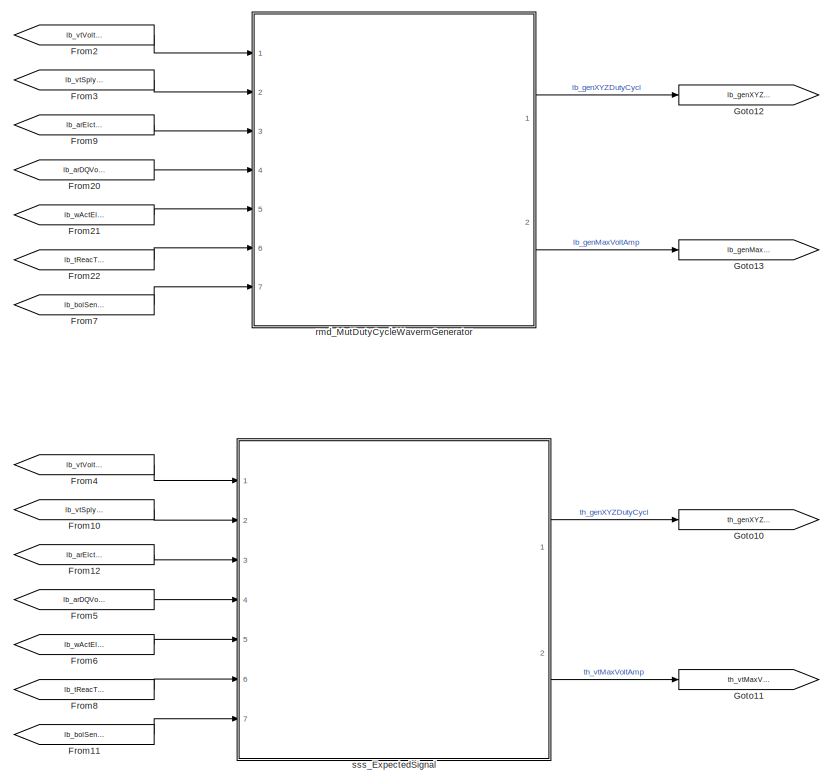
[diagram: root canvas - part 1/3, center side, full height]
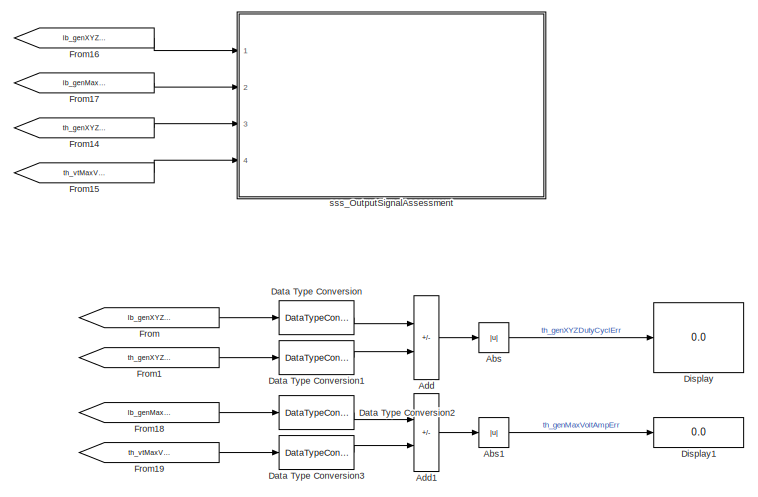
[diagram: root canvas - part 2/3, middle right region]
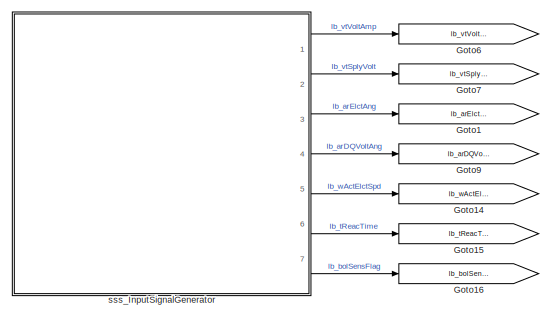
[diagram: root canvas - part 3/3, top left region]
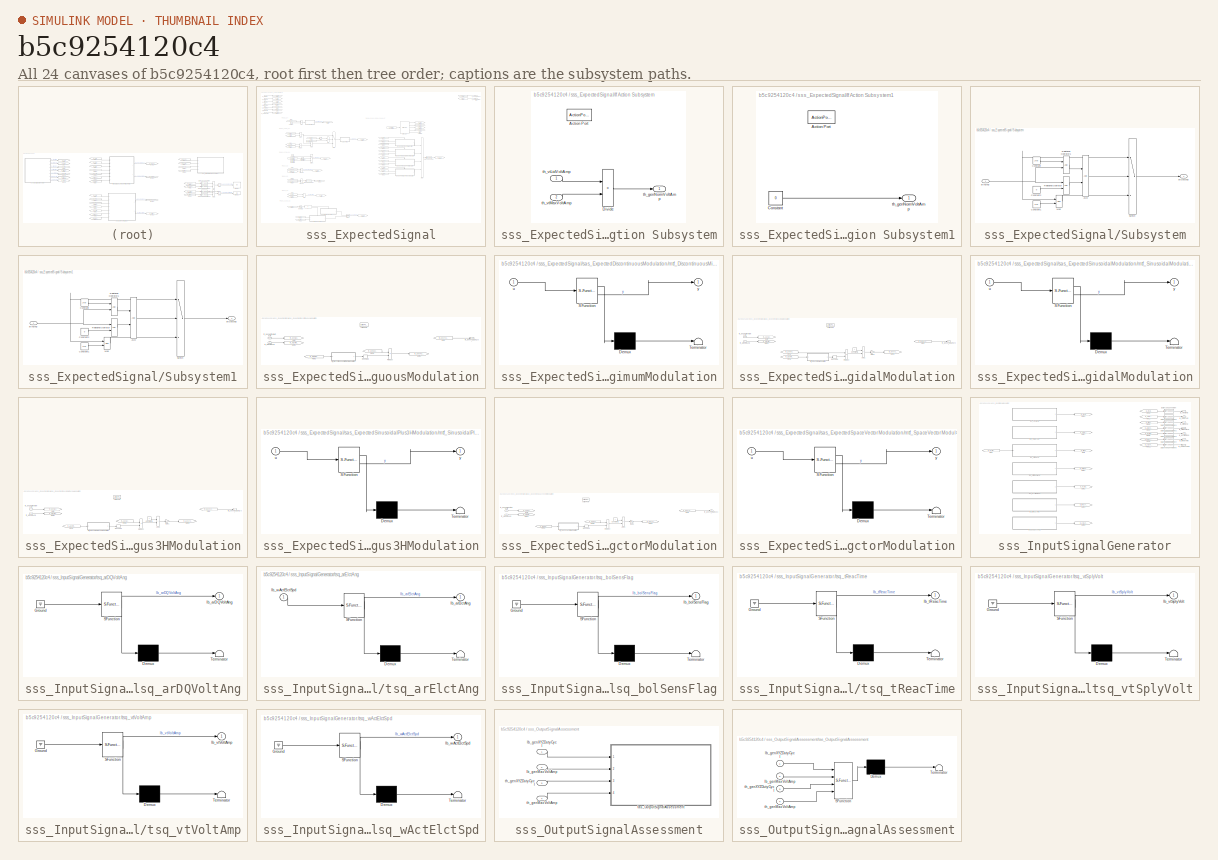
[diagram: thumbnail index - all 24 canvases of the model, root first then tree order]
MODEL slx_b5c9254120c4
KIND model
CONFIG AbsTol = auto
CONFIG EnableMultiTasking = off
CONFIG FixedStep = 6.25e-6
CONFIG MaxStep = auto
CONFIG MinStep = auto
CONFIG RelTol = 1e-3
CONFIG SampleTimeConstraint = Unconstrained
CONFIG SolverName = FixedStepAuto
CONFIG StartTime = 0.0
CONFIG StopTime = 10.0
BLOCK [Abs] Abs
  SaturateOnIntegerOverflow = off
BLOCK [Abs] Abs1
  SaturateOnIntegerOverflow = off
BLOCK [Sum] Add
  IconShape = rectangular
  Inputs = +-
  OutDataTypeStr = double
  Ports = [2, 1]
BLOCK [Sum] Add1
  IconShape = rectangular
  Inputs = +-
  OutDataTypeStr = double
  Ports = [2, 1]
BLOCK [DataTypeConversion] Data Type Conversion
  OutDataTypeStr = double
  RndMeth = Floor
  SaturateOnIntegerOverflow = off
BLOCK [DataTypeConversion] Data Type Conversion1
  OutDataTypeStr = double
  RndMeth = Floor
  SaturateOnIntegerOverflow = off
BLOCK [DataTypeConversion] Data Type Conversion2
  OutDataTypeStr = double
  RndMeth = Floor
  SaturateOnIntegerOverflow = off
BLOCK [DataTypeConversion] Data Type Conversion3
  OutDataTypeStr = double
  RndMeth = Floor
  SaturateOnIntegerOverflow = off
BLOCK [Display] Display
  Decimation = 1
  Ports = [1]
BLOCK [Display] Display1
  Decimation = 1
  Ports = [1]
BLOCK [From] From
  GotoTag = lb_genXYZDutyCycl
BLOCK [From] From1
  GotoTag = th_genXYZDutyCycl
BLOCK [From] From10
  GotoTag = lb_vtSplyVolt
BLOCK [From] From11
  GotoTag = lb_bolSensFlag
BLOCK [From] From12
  GotoTag = lb_arElctAng
BLOCK [From] From14
  GotoTag = th_genXYZDutyCycl
BLOCK [From] From15
  GotoTag = th_vtMaxVoltAmp
BLOCK [From] From16
  GotoTag = lb_genXYZDutyCycl
BLOCK [From] From17
  GotoTag = lb_genMaxVoltAmp
BLOCK [From] From18
  GotoTag = lb_genMaxVoltAmp
BLOCK [From] From19
  GotoTag = th_vtMaxVoltAmp
BLOCK [From] From2
  GotoTag = lb_vtVoltAmp
BLOCK [From] From20
  GotoTag = lb_arDQVoltAng
BLOCK [From] From21
  GotoTag = lb_wActElctSpd
BLOCK [From] From22
  GotoTag = lb_tReacTime
BLOCK [From] From3
  GotoTag = lb_vtSplyVolt
BLOCK [From] From4
  GotoTag = lb_vtVoltAmp
BLOCK [From] From5
  GotoTag = lb_arDQVoltAng
BLOCK [From] From6
  GotoTag = lb_wActElctSpd
BLOCK [From] From7
  GotoTag = lb_bolSensFlag
BLOCK [From] From8
  GotoTag = lb_tReacTime
BLOCK [From] From9
  GotoTag = lb_arElctAng
BLOCK [Goto] Goto1
  GotoTag = lb_arElctAng
BLOCK [Goto] Goto10
  GotoTag = th_genXYZDutyCycl
BLOCK [Goto] Goto11
  GotoTag = th_vtMaxVoltAmp
BLOCK [Goto] Goto12
  GotoTag = lb_genXYZDutyCycl
BLOCK [Goto] Goto13
  GotoTag = lb_genMaxVoltAmp
BLOCK [Goto] Goto14
  GotoTag = lb_wActElctSpd
BLOCK [Goto] Goto15
  GotoTag = lb_tReacTime
BLOCK [Goto] Goto16
  GotoTag = lb_bolSensFlag
BLOCK [Goto] Goto6
  GotoTag = lb_vtVoltAmp
BLOCK [Goto] Goto7
  GotoTag = lb_vtSplyVolt
BLOCK [Goto] Goto9
  GotoTag = lb_arDQVoltAng
BLOCK [ModelReference] rmd_MutDutyCycleWavermGenerator
  ModelNameDialog = mut_duty_cycle_waveform_generator
  ModelReferenceVersion = 1.54
  Ports = [7, 2]
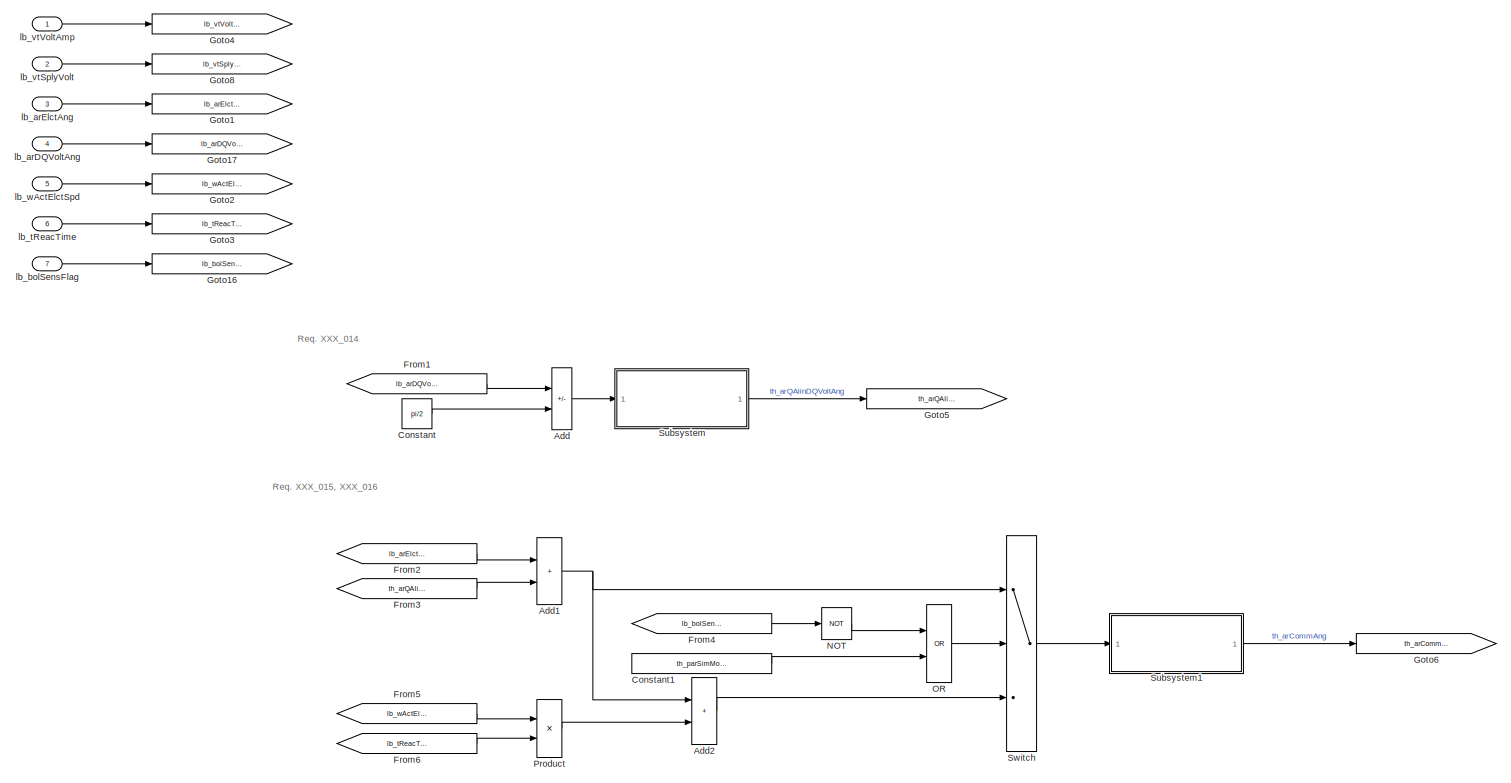
[diagram: sss_ExpectedSignal - part 1/5, top left region]
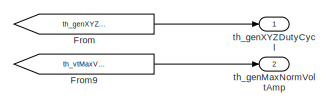
[diagram: sss_ExpectedSignal - part 2/5, top right region]
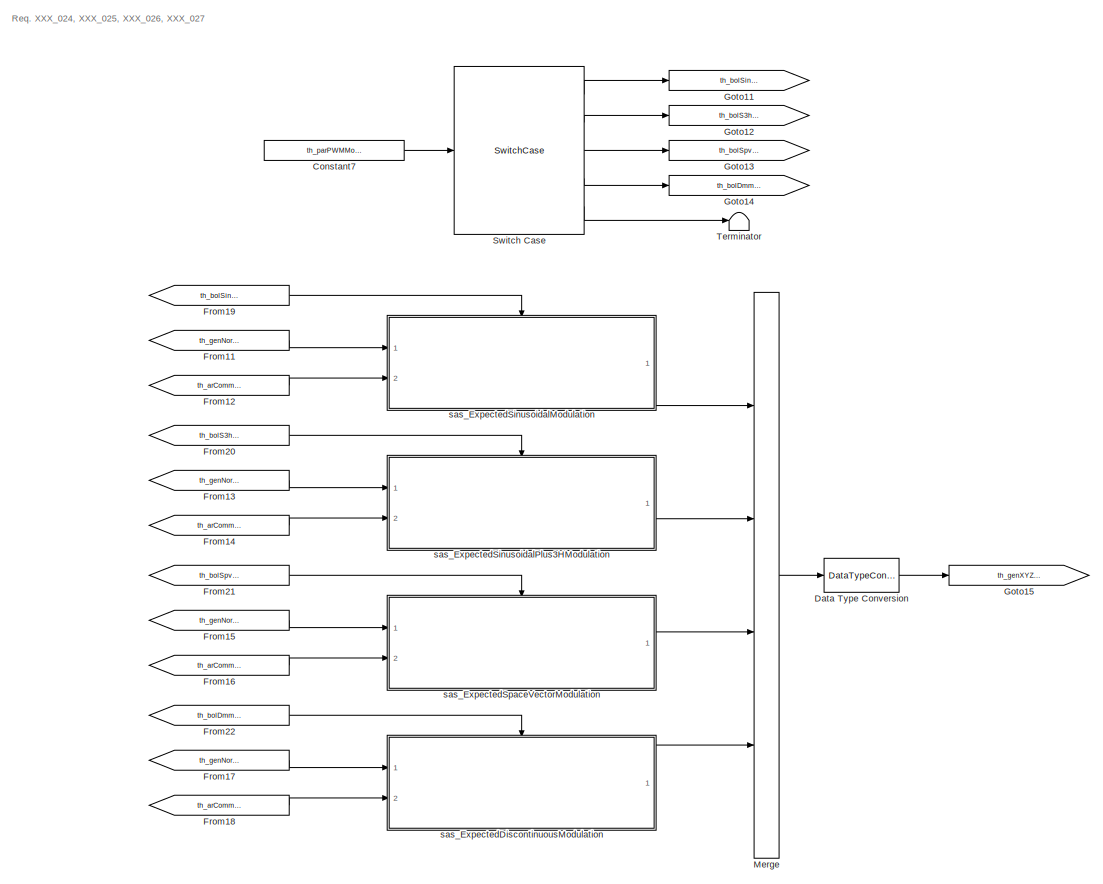
[diagram: sss_ExpectedSignal - part 3/5, central region]
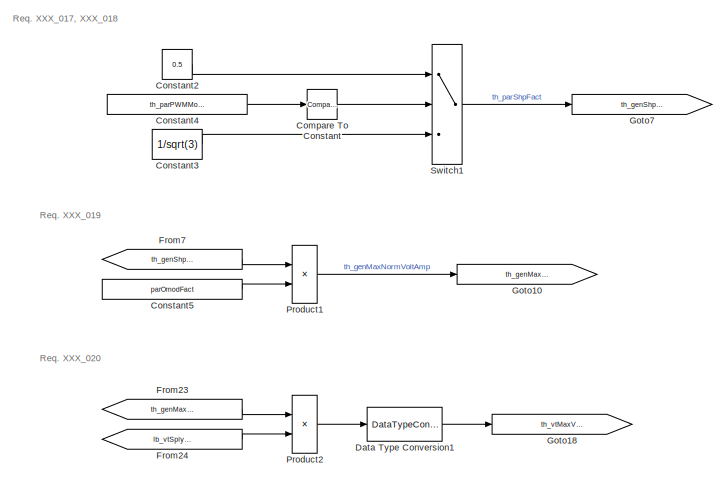
[diagram: sss_ExpectedSignal - part 4/5, middle left region]
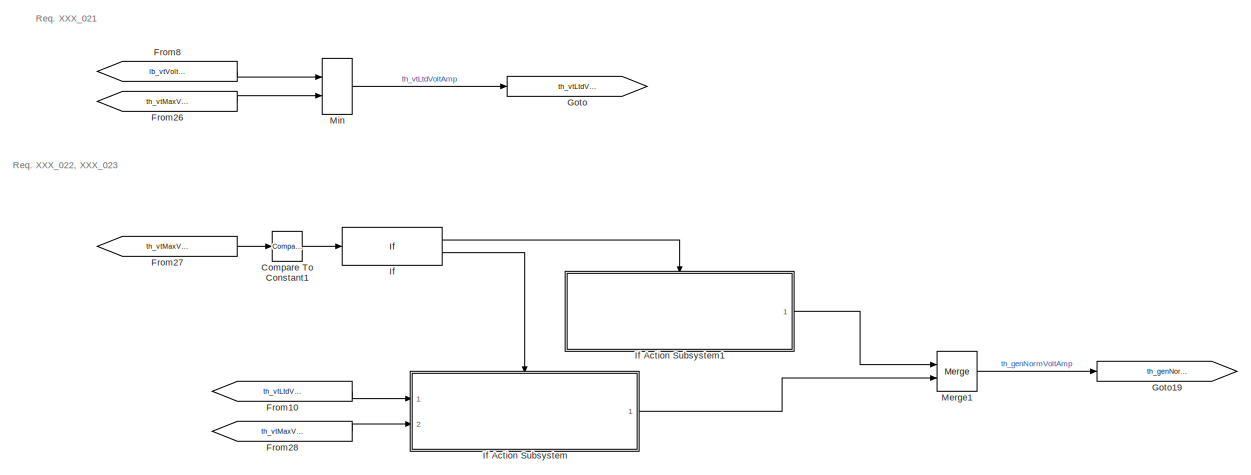
[diagram: sss_ExpectedSignal - part 5/5, bottom left region]
BLOCK [SubSystem] sss_ExpectedSignal
  Ports = [7, 2]
  RequestExecContextInheritance = off
BLOCK [Sum] sss_ExpectedSignal/Add
  IconShape = rectangular
  Inputs = +-
  Ports = [2, 1]
BLOCK [Sum] sss_ExpectedSignal/Add1
  IconShape = rectangular
  Ports = [2, 1]
BLOCK [Sum] sss_ExpectedSignal/Add2
  IconShape = rectangular
  Ports = [2, 1]
BLOCK [Reference] sss_ExpectedSignal/Compare To Constant  REF=simulink/Logic and Bit
Operations/Compare
To Constant
  Ports = [1, 1]
  SourceBlock = simulink/Logic and Bit\nOperations/Compare\nTo Constant
  SourceProductBaseCode = SL
  SourceType = Compare To Constant
BLOCK [Reference] sss_ExpectedSignal/Compare To Constant1  REF=simulink/Logic and Bit
Operations/Compare
To Constant
  Ports = [1, 1]
  SourceBlock = simulink/Logic and Bit\nOperations/Compare\nTo Constant
  SourceProductBaseCode = SL
  SourceType = Compare To Constant
BLOCK [Constant] sss_ExpectedSignal/Constant
  Value = pi/2
BLOCK [Constant] sss_ExpectedSignal/Constant1
  Value = th_parSimModeFlag
BLOCK [Constant] sss_ExpectedSignal/Constant2
  Value = 0.5
BLOCK [Constant] sss_ExpectedSignal/Constant3
  Value = 1/sqrt(3)
BLOCK [Constant] sss_ExpectedSignal/Constant4
  Value = th_parPWMMode
BLOCK [Constant] sss_ExpectedSignal/Constant5
  Value = parOmodFact
BLOCK [Constant] sss_ExpectedSignal/Constant7
  Value = th_parPWMMode
BLOCK [DataTypeConversion] sss_ExpectedSignal/Data Type Conversion
  OutDataTypeStr = fixdt(0,16,2^-15,0)
  RndMeth = Floor
  SaturateOnIntegerOverflow = off
BLOCK [DataTypeConversion] sss_ExpectedSignal/Data Type Conversion1
  OutDataTypeStr = fixdt(1,16,2^-9,0)
  RndMeth = Floor
  SaturateOnIntegerOverflow = off
BLOCK [From] sss_ExpectedSignal/From
  GotoTag = th_genXYZDutyCycl
BLOCK [From] sss_ExpectedSignal/From1
  GotoTag = lb_arDQVoltAng
BLOCK [From] sss_ExpectedSignal/From10
  GotoTag = th_vtLtdVoltAmp
BLOCK [From] sss_ExpectedSignal/From11
  GotoTag = th_genNormVoltAmp
BLOCK [From] sss_ExpectedSignal/From12
  GotoTag = th_arCommAng
BLOCK [From] sss_ExpectedSignal/From13
  GotoTag = th_genNormVoltAmp
BLOCK [From] sss_ExpectedSignal/From14
  GotoTag = th_arCommAng
BLOCK [From] sss_ExpectedSignal/From15
  GotoTag = th_genNormVoltAmp
BLOCK [From] sss_ExpectedSignal/From16
  GotoTag = th_arCommAng
BLOCK [From] sss_ExpectedSignal/From17
  GotoTag = th_genNormVoltAmp
BLOCK [From] sss_ExpectedSignal/From18
  GotoTag = th_arCommAng
BLOCK [From] sss_ExpectedSignal/From19
  GotoTag = th_bolSinmCase
BLOCK [From] sss_ExpectedSignal/From2
  GotoTag = lb_arElctAng
BLOCK [From] sss_ExpectedSignal/From20
  GotoTag = th_bolS3hmCase
BLOCK [From] sss_ExpectedSignal/From21
  GotoTag = th_bolSpvmCase
BLOCK [From] sss_ExpectedSignal/From22
  GotoTag = th_bolDmmCase
BLOCK [From] sss_ExpectedSignal/From23
  GotoTag = th_genMaxNormVoltAmp
BLOCK [From] sss_ExpectedSignal/From24
  GotoTag = lb_vtSplyVolt
BLOCK [From] sss_ExpectedSignal/From26
  GotoTag = th_vtMaxVoltAmp
BLOCK [From] sss_ExpectedSignal/From27
  GotoTag = th_vtMaxVoltAmp
BLOCK [From] sss_ExpectedSignal/From28
  GotoTag = th_vtMaxVoltAmp
BLOCK [From] sss_ExpectedSignal/From3
  GotoTag = th_arQAlinDQVoltAng
BLOCK [From] sss_ExpectedSignal/From4
  GotoTag = lb_bolSensFlag
BLOCK [From] sss_ExpectedSignal/From5
  GotoTag = lb_wActElctSpd
BLOCK [From] sss_ExpectedSignal/From6
  GotoTag = lb_tReacTime
BLOCK [From] sss_ExpectedSignal/From7
  GotoTag = th_genShpFact
BLOCK [From] sss_ExpectedSignal/From8
  GotoTag = lb_vtVoltAmp
BLOCK [From] sss_ExpectedSignal/From9
  GotoTag = th_vtMaxVoltAmp
BLOCK [Goto] sss_ExpectedSignal/Goto
  GotoTag = th_vtLtdVoltAmp
BLOCK [Goto] sss_ExpectedSignal/Goto1
  GotoTag = lb_arElctAng
BLOCK [Goto] sss_ExpectedSignal/Goto10
  GotoTag = th_genMaxNormVoltAmp
BLOCK [Goto] sss_ExpectedSignal/Goto11
  GotoTag = th_bolSinmCase
BLOCK [Goto] sss_ExpectedSignal/Goto12
  GotoTag = th_bolS3hmCase
BLOCK [Goto] sss_ExpectedSignal/Goto13
  GotoTag = th_bolSpvmCase
BLOCK [Goto] sss_ExpectedSignal/Goto14
  GotoTag = th_bolDmmCase
BLOCK [Goto] sss_ExpectedSignal/Goto15
  GotoTag = th_genXYZDutyCycl
BLOCK [Goto] sss_ExpectedSignal/Goto16
  GotoTag = lb_bolSensFlag
BLOCK [Goto] sss_ExpectedSignal/Goto17
  GotoTag = lb_arDQVoltAng
BLOCK [Goto] sss_ExpectedSignal/Goto18
  GotoTag = th_vtMaxVoltAmp
BLOCK [Goto] sss_ExpectedSignal/Goto19
  GotoTag = th_genNormVoltAmp
BLOCK [Goto] sss_ExpectedSignal/Goto2
  GotoTag = lb_wActElctSpd
BLOCK [Goto] sss_ExpectedSignal/Goto3
  GotoTag = lb_tReacTime
BLOCK [Goto] sss_ExpectedSignal/Goto4
  GotoTag = lb_vtVoltAmp
BLOCK [Goto] sss_ExpectedSignal/Goto5
  GotoTag = th_arQAlinDQVoltAng
BLOCK [Goto] sss_ExpectedSignal/Goto6
  GotoTag = th_arCommAng
BLOCK [Goto] sss_ExpectedSignal/Goto7
  GotoTag = th_genShpFact
BLOCK [Goto] sss_ExpectedSignal/Goto8
  GotoTag = lb_vtSplyVolt
BLOCK [If] sss_ExpectedSignal/If
  IfExpression = u1
  Ports = [1, 2]
BLOCK [SubSystem] sss_ExpectedSignal/If Action Subsystem
  Ports = [2, 1, 0, 0, 0, 0, 0, 1]
  RequestExecContextInheritance = off
  TreatAsAtomicUnit = on
BLOCK [ActionPort] sss_ExpectedSignal/If Action Subsystem/Action Port
  ActionPortLabel = else
BLOCK [Product] sss_ExpectedSignal/If Action Subsystem/Divide
  Inputs = */
  OutDataTypeStr = double
  Ports = [2, 1]
BLOCK [Outport] sss_ExpectedSignal/If Action Subsystem/th_genNormVoltAmp
BLOCK [Inport] sss_ExpectedSignal/If Action Subsystem/th_vtLtdVoltAmp
BLOCK [Inport] sss_ExpectedSignal/If Action Subsystem/th_vtMaxVoltAmp
  Port = 2
BLOCK [SubSystem] sss_ExpectedSignal/If Action Subsystem1
  Ports = [0, 1, 0, 0, 0, 0, 0, 1]
  RequestExecContextInheritance = off
  TreatAsAtomicUnit = on
BLOCK [ActionPort] sss_ExpectedSignal/If Action Subsystem1/Action Port
  ActionPortLabel = if(u1)
BLOCK [Constant] sss_ExpectedSignal/If Action Subsystem1/Constant
  OutDataTypeStr = double
  Value = 0
BLOCK [Outport] sss_ExpectedSignal/If Action Subsystem1/th_genNormVoltAmp
BLOCK [Merge] sss_ExpectedSignal/Merge
  Inputs = 4
  Ports = [4, 1]
BLOCK [Merge] sss_ExpectedSignal/Merge1
  Ports = [2, 1]
BLOCK [MinMax] sss_ExpectedSignal/Min
  Inputs = 2
  Ports = [2, 1]
BLOCK [Logic] sss_ExpectedSignal/NOT
  AllPortsSameDT = off
  IconShape = distinctive
  Operator = NOT
  OutDataTypeStr = boolean
  Ports = [1, 1]
BLOCK [Logic] sss_ExpectedSignal/OR
  AllPortsSameDT = off
  Operator = OR
  OutDataTypeStr = boolean
  Ports = [2, 1]
BLOCK [Product] sss_ExpectedSignal/Product
  Ports = [2, 1]
BLOCK [Product] sss_ExpectedSignal/Product1
  Ports = [2, 1]
BLOCK [Product] sss_ExpectedSignal/Product2
  OutDataTypeStr = Inherit: Inherit via back propagation
  Ports = [2, 1]
BLOCK [SubSystem] sss_ExpectedSignal/Subsystem
  Ports = [1, 1]
  RequestExecContextInheritance = off
BLOCK [Logic] sss_ExpectedSignal/Subsystem/AND
  AllPortsSameDT = off
  OutDataTypeStr = boolean
  Ports = [2, 1]
BLOCK [Constant] sss_ExpectedSignal/Subsystem/Constant
  OutDataTypeStr = Inherit: Inherit via back propagation
  Value = 2*pi
BLOCK [Constant] sss_ExpectedSignal/Subsystem/Constant1
  OutDataTypeStr = Inherit: Inherit via back propagation
  Value = 2*pi
BLOCK [Constant] sss_ExpectedSignal/Subsystem/Constant2
  OutDataTypeStr = Inherit: Inherit via back propagation
  Value = 0
BLOCK [Math] sss_ExpectedSignal/Subsystem/Mod
  Operator = mod
  Ports = [2, 1]
BLOCK [RelationalOperator] sss_ExpectedSignal/Subsystem/Relational Operator
  InputSameDT = off
  OutDataTypeStr = boolean
  Ports = [2, 1]
  RndMeth = Simplest
BLOCK [RelationalOperator] sss_ExpectedSignal/Subsystem/Relational Operator1
  InputSameDT = off
  OutDataTypeStr = boolean
  Ports = [2, 1]
  RndMeth = Simplest
BLOCK [Switch] sss_ExpectedSignal/Subsystem/Switch
  Criteria = u2 ~= 0
  InputSameDT = off
  SaturateOnIntegerOverflow = off
BLOCK [Inport] sss_ExpectedSignal/Subsystem/arInpAng
BLOCK [Outport] sss_ExpectedSignal/Subsystem/arOutpAng
BLOCK [SubSystem] sss_ExpectedSignal/Subsystem1
  Ports = [1, 1]
  RequestExecContextInheritance = off
BLOCK [Logic] sss_ExpectedSignal/Subsystem1/AND
  AllPortsSameDT = off
  OutDataTypeStr = boolean
  Ports = [2, 1]
BLOCK [Constant] sss_ExpectedSignal/Subsystem1/Constant
  OutDataTypeStr = Inherit: Inherit via back propagation
  Value = 2*pi
BLOCK [Constant] sss_ExpectedSignal/Subsystem1/Constant1
  OutDataTypeStr = Inherit: Inherit via back propagation
  Value = 2*pi
BLOCK [Constant] sss_ExpectedSignal/Subsystem1/Constant2
  OutDataTypeStr = Inherit: Inherit via back propagation
  Value = 0
BLOCK [Math] sss_ExpectedSignal/Subsystem1/Mod
  Operator = mod
  Ports = [2, 1]
BLOCK [RelationalOperator] sss_ExpectedSignal/Subsystem1/Relational Operator
  InputSameDT = off
  OutDataTypeStr = boolean
  Ports = [2, 1]
  RndMeth = Simplest
BLOCK [RelationalOperator] sss_ExpectedSignal/Subsystem1/Relational Operator1
  InputSameDT = off
  OutDataTypeStr = boolean
  Ports = [2, 1]
  RndMeth = Simplest
BLOCK [Switch] sss_ExpectedSignal/Subsystem1/Switch
  Criteria = u2 ~= 0
  InputSameDT = off
  SaturateOnIntegerOverflow = off
BLOCK [Inport] sss_ExpectedSignal/Subsystem1/arInpAng
BLOCK [Outport] sss_ExpectedSignal/Subsystem1/arOutpAng
BLOCK [Switch] sss_ExpectedSignal/Switch
  Criteria = u2 ~= 0
  InputSameDT = off
  SaturateOnIntegerOverflow = off
BLOCK [SwitchCase] sss_ExpectedSignal/Switch Case
  CaseConditions = {1,2,3,4}
  Ports = [1, 5]
BLOCK [Switch] sss_ExpectedSignal/Switch1
  Criteria = u2 ~= 0
  InputSameDT = off
  SaturateOnIntegerOverflow = off
BLOCK [Terminator] sss_ExpectedSignal/Terminator
BLOCK [Inport] sss_ExpectedSignal/lb_arDQVoltAng
  Interpolate = off
  OutDataTypeStr = fixdt(0,16,pi*2^-15,0)
  Port = 4
BLOCK [Inport] sss_ExpectedSignal/lb_arElctAng
  Interpolate = off
  OutDataTypeStr = fixdt(0,16,pi*2^-15,0)
  Port = 3
BLOCK [Inport] sss_ExpectedSignal/lb_bolSensFlag
  OutDataTypeStr = boolean
  Port = 7
BLOCK [Inport] sss_ExpectedSignal/lb_tReacTime
  Interpolate = off
  Port = 6
BLOCK [Inport] sss_ExpectedSignal/lb_vtSplyVolt
  Interpolate = off
  Port = 2
BLOCK [Inport] sss_ExpectedSignal/lb_vtVoltAmp
  Interpolate = off
BLOCK [Inport] sss_ExpectedSignal/lb_wActElctSpd
  Interpolate = off
  Port = 5
BLOCK [SubSystem] sss_ExpectedSignal/sas_ExpectedDiscontinuousModulation
  Ports = [2, 1, 0, 0, 0, 0, 0, 1]
  RequestExecContextInheritance = off
  TreatAsAtomicUnit = on
BLOCK [ActionPort] sss_ExpectedSignal/sas_ExpectedDiscontinuousModulation/Action Port
  ActionPortLabel = case [ 4 ]:
BLOCK [From] sss_ExpectedSignal/sas_ExpectedDiscontinuousModulation/From
  GotoTag = th_genXYZDutyCycl
BLOCK [From] sss_ExpectedSignal/sas_ExpectedDiscontinuousModulation/From2
  GotoTag = th_genNormVoltAmpLtd
BLOCK [From] sss_ExpectedSignal/sas_ExpectedDiscontinuousModulation/From3
  GotoTag = th_arCommAng
BLOCK [Goto] sss_ExpectedSignal/sas_ExpectedDiscontinuousModulation/Goto
  GotoTag = th_genNormVoltAmpLtd
BLOCK [Goto] sss_ExpectedSignal/sas_ExpectedDiscontinuousModulation/Goto1
  GotoTag = th_arCommAng
BLOCK [Goto] sss_ExpectedSignal/sas_ExpectedDiscontinuousModulation/Goto2
  GotoTag = th_genXYZDutyCycl
BLOCK [Product] sss_ExpectedSignal/sas_ExpectedDiscontinuousModulation/Product
  Ports = [2, 1]
BLOCK [Reshape] sss_ExpectedSignal/sas_ExpectedDiscontinuousModulation/Reshape
  Ports = [1, 1]
BLOCK [SubSystem] sss_ExpectedSignal/sas_ExpectedDiscontinuousModulation/mtf_DiscontinuousMinimumModulation
  ErrorFcn = Stateflow.Translate.translate
  PermitHierarchicalResolution = ExplicitOnly
  Ports = [1, 1]
  RequestExecContextInheritance = off
  SFBlockType = MATLAB Function
  TreatAsAtomicUnit = on
BLOCK [Demux] sss_ExpectedSignal/sas_ExpectedDiscontinuousModulation/mtf_DiscontinuousMinimumModulation/ Demux 
  Outputs = 1
  Ports = [1, 1]
BLOCK [S-Function] sss_ExpectedSignal/sas_ExpectedDiscontinuousModulation/mtf_DiscontinuousMinimumModulation/ SFunction 
  EnableBusSupport = on
  FunctionName = sf_sfun
  PortCounts = [1 2]
  Ports = [1, 2]
  SFcnIsStateOwnerBlock = off
  SFunctionDeploymentMode = off
  Tag = Stateflow S-Function 11
BLOCK [Terminator] sss_ExpectedSignal/sas_ExpectedDiscontinuousModulation/mtf_DiscontinuousMinimumModulation/ Terminator 
BLOCK [Inport] sss_ExpectedSignal/sas_ExpectedDiscontinuousModulation/mtf_DiscontinuousMinimumModulation/u
BLOCK [Outport] sss_ExpectedSignal/sas_ExpectedDiscontinuousModulation/mtf_DiscontinuousMinimumModulation/y
BLOCK [Inport] sss_ExpectedSignal/sas_ExpectedDiscontinuousModulation/th_arCommAng
  Port = 2
BLOCK [Inport] sss_ExpectedSignal/sas_ExpectedDiscontinuousModulation/th_genNormVoltAmpLtd
BLOCK [Outport] sss_ExpectedSignal/sas_ExpectedDiscontinuousModulation/th_genXYZDutyCycl
BLOCK [SubSystem] sss_ExpectedSignal/sas_ExpectedSinusoidalModulation
  Ports = [2, 1, 0, 0, 0, 0, 0, 1]
  RequestExecContextInheritance = off
  TreatAsAtomicUnit = on
BLOCK [ActionPort] sss_ExpectedSignal/sas_ExpectedSinusoidalModulation/Action Port
  ActionPortLabel = case [ 1 ]:
BLOCK [Sum] sss_ExpectedSignal/sas_ExpectedSinusoidalModulation/Add1
  IconShape = rectangular
  Ports = [2, 1]
BLOCK [Constant] sss_ExpectedSignal/sas_ExpectedSinusoidalModulation/Constant1
BLOCK [From] sss_ExpectedSignal/sas_ExpectedSinusoidalModulation/From
  GotoTag = th_genXYZDutyCycl
BLOCK [From] sss_ExpectedSignal/sas_ExpectedSinusoidalModulation/From1
  GotoTag = th_arCommAng
BLOCK [From] sss_ExpectedSignal/sas_ExpectedSinusoidalModulation/From2
  GotoTag = th_genNormVoltAmpLtd
BLOCK [Gain] sss_ExpectedSignal/sas_ExpectedSinusoidalModulation/Gain1
  Gain = 1/2
BLOCK [Goto] sss_ExpectedSignal/sas_ExpectedSinusoidalModulation/Goto
  GotoTag = th_genNormVoltAmpLtd
BLOCK [Goto] sss_ExpectedSignal/sas_ExpectedSinusoidalModulation/Goto1
  GotoTag = th_arCommAng
BLOCK [Goto] sss_ExpectedSignal/sas_ExpectedSinusoidalModulation/Goto2
  GotoTag = th_genXYZDutyCycl
BLOCK [Product] sss_ExpectedSignal/sas_ExpectedSinusoidalModulation/Product
  Ports = [2, 1]
BLOCK [Reshape] sss_ExpectedSignal/sas_ExpectedSinusoidalModulation/Reshape
  Ports = [1, 1]
BLOCK [SubSystem] sss_ExpectedSignal/sas_ExpectedSinusoidalModulation/mtf_SinusoidalModulation
  ErrorFcn = Stateflow.Translate.translate
  PermitHierarchicalResolution = ExplicitOnly
  Ports = [1, 1]
  RequestExecContextInheritance = off
  SFBlockType = MATLAB Function
  TreatAsAtomicUnit = on
BLOCK [Demux] sss_ExpectedSignal/sas_ExpectedSinusoidalModulation/mtf_SinusoidalModulation/ Demux 
  Outputs = 1
  Ports = [1, 1]
BLOCK [S-Function] sss_ExpectedSignal/sas_ExpectedSinusoidalModulation/mtf_SinusoidalModulation/ SFunction 
  EnableBusSupport = on
  FunctionName = sf_sfun
  PortCounts = [1 2]
  Ports = [1, 2]
  SFcnIsStateOwnerBlock = off
  SFunctionDeploymentMode = off
  Tag = Stateflow S-Function 9
BLOCK [Terminator] sss_ExpectedSignal/sas_ExpectedSinusoidalModulation/mtf_SinusoidalModulation/ Terminator 
BLOCK [Inport] sss_ExpectedSignal/sas_ExpectedSinusoidalModulation/mtf_SinusoidalModulation/u
BLOCK [Outport] sss_ExpectedSignal/sas_ExpectedSinusoidalModulation/mtf_SinusoidalModulation/y
BLOCK [Inport] sss_ExpectedSignal/sas_ExpectedSinusoidalModulation/th_arCommAng
  Port = 2
BLOCK [Inport] sss_ExpectedSignal/sas_ExpectedSinusoidalModulation/th_genNormVoltAmpLtd
BLOCK [Outport] sss_ExpectedSignal/sas_ExpectedSinusoidalModulation/th_genXYZDutyCycl
BLOCK [SubSystem] sss_ExpectedSignal/sas_ExpectedSinusoidalPlus3HModulation
  Ports = [2, 1, 0, 0, 0, 0, 0, 1]
  RequestExecContextInheritance = off
  TreatAsAtomicUnit = on
BLOCK [ActionPort] sss_ExpectedSignal/sas_ExpectedSinusoidalPlus3HModulation/Action Port
  ActionPortLabel = case [ 2 ]:
BLOCK [Sum] sss_ExpectedSignal/sas_ExpectedSinusoidalPlus3HModulation/Add1
  IconShape = rectangular
  Ports = [2, 1]
BLOCK [Constant] sss_ExpectedSignal/sas_ExpectedSinusoidalPlus3HModulation/Constant1
BLOCK [From] sss_ExpectedSignal/sas_ExpectedSinusoidalPlus3HModulation/From
  GotoTag = th_genXYZDutyCycl
BLOCK [From] sss_ExpectedSignal/sas_ExpectedSinusoidalPlus3HModulation/From2
  GotoTag = th_genNormVoltAmpLtd
BLOCK [From] sss_ExpectedSignal/sas_ExpectedSinusoidalPlus3HModulation/From3
  GotoTag = th_arCommAng
BLOCK [Gain] sss_ExpectedSignal/sas_ExpectedSinusoidalPlus3HModulation/Gain1
  Gain = 1/2
BLOCK [Goto] sss_ExpectedSignal/sas_ExpectedSinusoidalPlus3HModulation/Goto
  GotoTag = th_genNormVoltAmpLtd
BLOCK [Goto] sss_ExpectedSignal/sas_ExpectedSinusoidalPlus3HModulation/Goto1
  GotoTag = th_arCommAng
BLOCK [Goto] sss_ExpectedSignal/sas_ExpectedSinusoidalPlus3HModulation/Goto2
  GotoTag = th_genXYZDutyCycl
BLOCK [Product] sss_ExpectedSignal/sas_ExpectedSinusoidalPlus3HModulation/Product
  Ports = [2, 1]
BLOCK [Reshape] sss_ExpectedSignal/sas_ExpectedSinusoidalPlus3HModulation/Reshape
  Ports = [1, 1]
BLOCK [SubSystem] sss_ExpectedSignal/sas_ExpectedSinusoidalPlus3HModulation/mtf_SinusoidalPlus3HModulation
  ErrorFcn = Stateflow.Translate.translate
  PermitHierarchicalResolution = ExplicitOnly
  Ports = [1, 1]
  RequestExecContextInheritance = off
  SFBlockType = MATLAB Function
  TreatAsAtomicUnit = on
BLOCK [Demux] sss_ExpectedSignal/sas_ExpectedSinusoidalPlus3HModulation/mtf_SinusoidalPlus3HModulation/ Demux 
  Outputs = 1
  Ports = [1, 1]
BLOCK [S-Function] sss_ExpectedSignal/sas_ExpectedSinusoidalPlus3HModulation/mtf_SinusoidalPlus3HModulation/ SFunction 
  EnableBusSupport = on
  FunctionName = sf_sfun
  PortCounts = [1 2]
  Ports = [1, 2]
  SFcnIsStateOwnerBlock = off
  SFunctionDeploymentMode = off
  Tag = Stateflow S-Function 4
BLOCK [Terminator] sss_ExpectedSignal/sas_ExpectedSinusoidalPlus3HModulation/mtf_SinusoidalPlus3HModulation/ Terminator 
BLOCK [Inport] sss_ExpectedSignal/sas_ExpectedSinusoidalPlus3HModulation/mtf_SinusoidalPlus3HModulation/u
BLOCK [Outport] sss_ExpectedSignal/sas_ExpectedSinusoidalPlus3HModulation/mtf_SinusoidalPlus3HModulation/y
BLOCK [Inport] sss_ExpectedSignal/sas_ExpectedSinusoidalPlus3HModulation/th_arCommAng
  Port = 2
BLOCK [Inport] sss_ExpectedSignal/sas_ExpectedSinusoidalPlus3HModulation/th_genNormVoltAmpLtd
BLOCK [Outport] sss_ExpectedSignal/sas_ExpectedSinusoidalPlus3HModulation/th_genXYZDutyCycl
BLOCK [SubSystem] sss_ExpectedSignal/sas_ExpectedSpaceVectorModulation
  Ports = [2, 1, 0, 0, 0, 0, 0, 1]
  RequestExecContextInheritance = off
  TreatAsAtomicUnit = on
BLOCK [ActionPort] sss_ExpectedSignal/sas_ExpectedSpaceVectorModulation/Action Port
  ActionPortLabel = case [ 3 ]:
BLOCK [Sum] sss_ExpectedSignal/sas_ExpectedSpaceVectorModulation/Add1
  IconShape = rectangular
  Ports = [2, 1]
BLOCK [Constant] sss_ExpectedSignal/sas_ExpectedSpaceVectorModulation/Constant1
BLOCK [From] sss_ExpectedSignal/sas_ExpectedSpaceVectorModulation/From
  GotoTag = th_genXYZDutyCycl
BLOCK [From] sss_ExpectedSignal/sas_ExpectedSpaceVectorModulation/From2
  GotoTag = th_genNormVoltAmpLtd
BLOCK [From] sss_ExpectedSignal/sas_ExpectedSpaceVectorModulation/From3
  GotoTag = th_arCommAng
BLOCK [Gain] sss_ExpectedSignal/sas_ExpectedSpaceVectorModulation/Gain1
  Gain = 1/2
BLOCK [Goto] sss_ExpectedSignal/sas_ExpectedSpaceVectorModulation/Goto
  GotoTag = th_genNormVoltAmpLtd
BLOCK [Goto] sss_ExpectedSignal/sas_ExpectedSpaceVectorModulation/Goto1
  GotoTag = th_arCommAng
BLOCK [Goto] sss_ExpectedSignal/sas_ExpectedSpaceVectorModulation/Goto2
  GotoTag = th_genXYZDutyCycl
BLOCK [Product] sss_ExpectedSignal/sas_ExpectedSpaceVectorModulation/Product
  Ports = [2, 1]
BLOCK [Reshape] sss_ExpectedSignal/sas_ExpectedSpaceVectorModulation/Reshape
  Ports = [1, 1]
BLOCK [SubSystem] sss_ExpectedSignal/sas_ExpectedSpaceVectorModulation/mtf_SpaceVectorModulation
  ErrorFcn = Stateflow.Translate.translate
  PermitHierarchicalResolution = ExplicitOnly
  Ports = [1, 1]
  RequestExecContextInheritance = off
  SFBlockType = MATLAB Function
  TreatAsAtomicUnit = on
BLOCK [Demux] sss_ExpectedSignal/sas_ExpectedSpaceVectorModulation/mtf_SpaceVectorModulation/ Demux 
  Outputs = 1
  Ports = [1, 1]
BLOCK [S-Function] sss_ExpectedSignal/sas_ExpectedSpaceVectorModulation/mtf_SpaceVectorModulation/ SFunction 
  EnableBusSupport = on
  FunctionName = sf_sfun
  PortCounts = [1 2]
  Ports = [1, 2]
  SFcnIsStateOwnerBlock = off
  SFunctionDeploymentMode = off
  Tag = Stateflow S-Function 10
BLOCK [Terminator] sss_ExpectedSignal/sas_ExpectedSpaceVectorModulation/mtf_SpaceVectorModulation/ Terminator 
BLOCK [Inport] sss_ExpectedSignal/sas_ExpectedSpaceVectorModulation/mtf_SpaceVectorModulation/u
BLOCK [Outport] sss_ExpectedSignal/sas_ExpectedSpaceVectorModulation/mtf_SpaceVectorModulation/y
BLOCK [Inport] sss_ExpectedSignal/sas_ExpectedSpaceVectorModulation/th_arCommAng
  Port = 2
BLOCK [Inport] sss_ExpectedSignal/sas_ExpectedSpaceVectorModulation/th_genNormVoltAmpLtd
BLOCK [Outport] sss_ExpectedSignal/sas_ExpectedSpaceVectorModulation/th_genXYZDutyCycl
BLOCK [Outport] sss_ExpectedSignal/th_genMaxNormVoltAmp
  Port = 2
BLOCK [Outport] sss_ExpectedSignal/th_genXYZDutyCycl
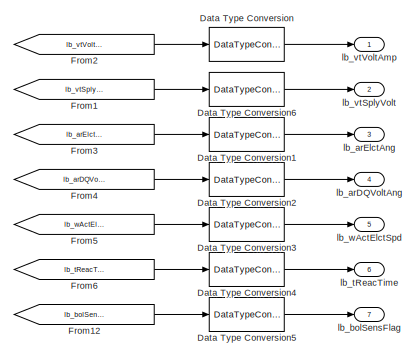
[diagram: sss_InputSignalGenerator - part 1/2, top right region]
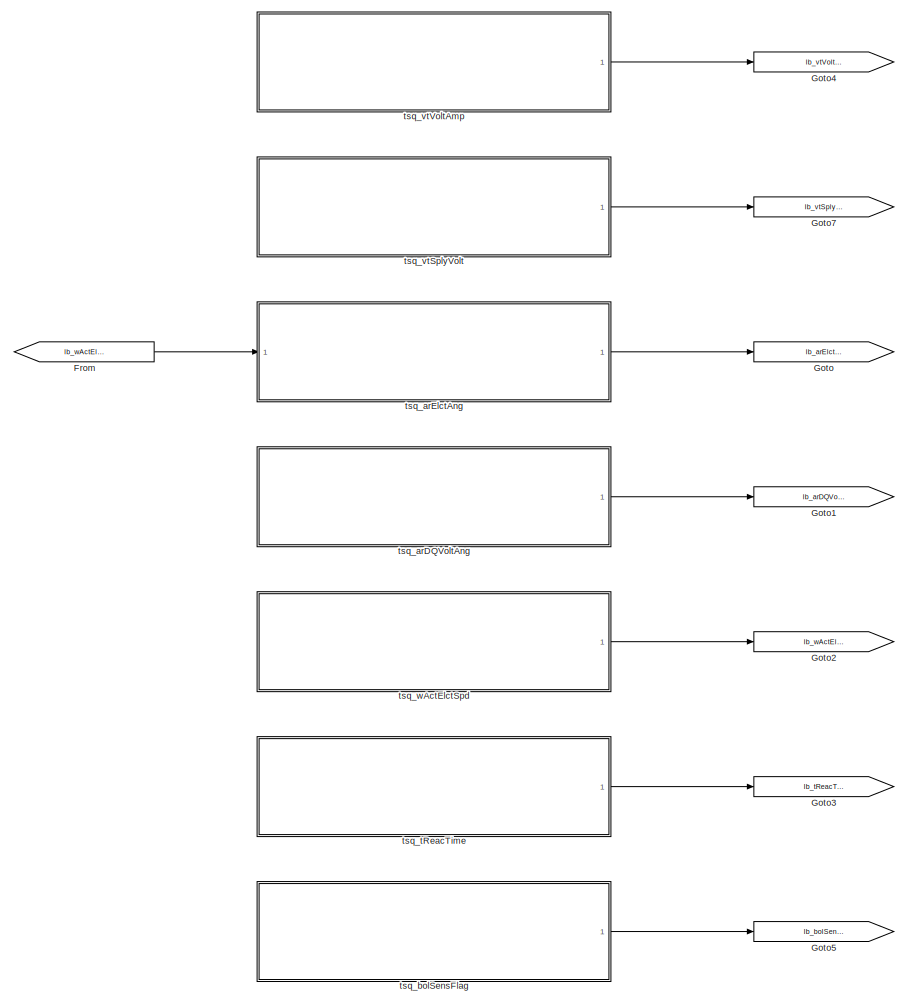
[diagram: sss_InputSignalGenerator - part 2/2, left side, full height]
BLOCK [SubSystem] sss_InputSignalGenerator
  InitFcn = Simulink.suppressDiagnostic([gcb,'/Data Type Conversion1'],...\n 'SimulinkFixedPoint:util:Overflowoccurred');\nSimulink.suppressDiagnostic([gcb,'/Data Type Conversion2'],...\n 'SimulinkFixedPoint:util:Overflowoccurred');
  Ports = [0, 7]
  RequestExecContextInheritance = off
BLOCK [DataTypeConversion] sss_InputSignalGenerator/Data Type Conversion
  OutDataTypeStr = fixdt(1,16,2^-9,0)
  RndMeth = Floor
  SaturateOnIntegerOverflow = off
BLOCK [DataTypeConversion] sss_InputSignalGenerator/Data Type Conversion1
  OutDataTypeStr = fixdt(0,16,pi*2^-15,0)
  RndMeth = Floor
  SaturateOnIntegerOverflow = off
BLOCK [DataTypeConversion] sss_InputSignalGenerator/Data Type Conversion2
  OutDataTypeStr = fixdt(0,16,pi*2^-15,0)
  RndMeth = Floor
  SaturateOnIntegerOverflow = off
BLOCK [DataTypeConversion] sss_InputSignalGenerator/Data Type Conversion3
  OutDataTypeStr = fixdt(1,16,2^-3,0)
  RndMeth = Floor
  SaturateOnIntegerOverflow = off
BLOCK [DataTypeConversion] sss_InputSignalGenerator/Data Type Conversion4
  OutDataTypeStr = fixdt(0,16,2^-26,0)
  RndMeth = Floor
  SaturateOnIntegerOverflow = off
BLOCK [DataTypeConversion] sss_InputSignalGenerator/Data Type Conversion5
  OutDataTypeStr = boolean
  RndMeth = Floor
  SaturateOnIntegerOverflow = off
BLOCK [DataTypeConversion] sss_InputSignalGenerator/Data Type Conversion6
  OutDataTypeStr = fixdt(1,16,2^-9,0)
  RndMeth = Floor
  SaturateOnIntegerOverflow = off
BLOCK [From] sss_InputSignalGenerator/From
  GotoTag = lb_wActElctSpd
BLOCK [From] sss_InputSignalGenerator/From1
  GotoTag = lb_vtSplyVolt
BLOCK [From] sss_InputSignalGenerator/From12
  GotoTag = lb_bolSensFlag
BLOCK [From] sss_InputSignalGenerator/From2
  GotoTag = lb_vtVoltAmp
BLOCK [From] sss_InputSignalGenerator/From3
  GotoTag = lb_arElctAng
BLOCK [From] sss_InputSignalGenerator/From4
  GotoTag = lb_arDQVoltAng
BLOCK [From] sss_InputSignalGenerator/From5
  GotoTag = lb_wActElctSpd
BLOCK [From] sss_InputSignalGenerator/From6
  GotoTag = lb_tReacTime
BLOCK [Goto] sss_InputSignalGenerator/Goto
  GotoTag = lb_arElctAng
BLOCK [Goto] sss_InputSignalGenerator/Goto1
  GotoTag = lb_arDQVoltAng
BLOCK [Goto] sss_InputSignalGenerator/Goto2
  GotoTag = lb_wActElctSpd
BLOCK [Goto] sss_InputSignalGenerator/Goto3
  GotoTag = lb_tReacTime
BLOCK [Goto] sss_InputSignalGenerator/Goto4
  GotoTag = lb_vtVoltAmp
BLOCK [Goto] sss_InputSignalGenerator/Goto5
  GotoTag = lb_bolSensFlag
BLOCK [Goto] sss_InputSignalGenerator/Goto7
  GotoTag = lb_vtSplyVolt
BLOCK [Outport] sss_InputSignalGenerator/lb_arDQVoltAng
  Port = 4
BLOCK [Outport] sss_InputSignalGenerator/lb_arElctAng
  Port = 3
BLOCK [Outport] sss_InputSignalGenerator/lb_bolSensFlag
  Port = 7
BLOCK [Outport] sss_InputSignalGenerator/lb_tReacTime
  Port = 6
BLOCK [Outport] sss_InputSignalGenerator/lb_vtSplyVolt
  Port = 2
BLOCK [Outport] sss_InputSignalGenerator/lb_vtVoltAmp
BLOCK [Outport] sss_InputSignalGenerator/lb_wActElctSpd
  Port = 5
BLOCK [SubSystem] sss_InputSignalGenerator/tsq_arDQVoltAng
  ErrorFcn = Stateflow.Translate.translate
  PermitHierarchicalResolution = ExplicitOnly
  Ports = [0, 1]
  RequestExecContextInheritance = off
  SFBlockType = Test Sequence
  TreatAsAtomicUnit = on
BLOCK [Demux] sss_InputSignalGenerator/tsq_arDQVoltAng/ Demux 
  Outputs = 1
  Ports = [1, 1]
BLOCK [Ground] sss_InputSignalGenerator/tsq_arDQVoltAng/ Ground 
BLOCK [S-Function] sss_InputSignalGenerator/tsq_arDQVoltAng/ SFunction 
  EnableBusSupport = on
  FunctionName = sf_sfun
  Parameters = 2
  PortCounts = [1 2]
  Ports = [1, 2]
  SFcnIsStateOwnerBlock = off
  SFunctionDeploymentMode = off
  Tag = Stateflow S-Function 3
BLOCK [Terminator] sss_InputSignalGenerator/tsq_arDQVoltAng/ Terminator 
BLOCK [Outport] sss_InputSignalGenerator/tsq_arDQVoltAng/lb_arDQVoltAng
BLOCK [SubSystem] sss_InputSignalGenerator/tsq_arElctAng
  ErrorFcn = Stateflow.Translate.translate
  PermitHierarchicalResolution = ExplicitOnly
  Ports = [1, 1]
  RequestExecContextInheritance = off
  SFBlockType = Test Sequence
  TreatAsAtomicUnit = on
BLOCK [Demux] sss_InputSignalGenerator/tsq_arElctAng/ Demux 
  Outputs = 1
  Ports = [1, 1]
BLOCK [S-Function] sss_InputSignalGenerator/tsq_arElctAng/ SFunction 
  EnableBusSupport = on
  FunctionName = sf_sfun
  Parameters = 1
  PortCounts = [1 2]
  Ports = [1, 2]
  SFcnIsStateOwnerBlock = off
  SFunctionDeploymentMode = off
  Tag = Stateflow S-Function 2
BLOCK [Terminator] sss_InputSignalGenerator/tsq_arElctAng/ Terminator 
BLOCK [Outport] sss_InputSignalGenerator/tsq_arElctAng/lb_arElctAng
BLOCK [Inport] sss_InputSignalGenerator/tsq_arElctAng/lb_wActElctSpd
BLOCK [SubSystem] sss_InputSignalGenerator/tsq_bolSensFlag
  ErrorFcn = Stateflow.Translate.translate
  PermitHierarchicalResolution = ExplicitOnly
  Ports = [0, 1]
  RequestExecContextInheritance = off
  SFBlockType = Test Sequence
  TreatAsAtomicUnit = on
BLOCK [Demux] sss_InputSignalGenerator/tsq_bolSensFlag/ Demux 
  Outputs = 1
  Ports = [1, 1]
BLOCK [Ground] sss_InputSignalGenerator/tsq_bolSensFlag/ Ground 
BLOCK [S-Function] sss_InputSignalGenerator/tsq_bolSensFlag/ SFunction 
  EnableBusSupport = on
  FunctionName = sf_sfun
  Parameters = 1
  PortCounts = [1 2]
  Ports = [1, 2]
  SFcnIsStateOwnerBlock = off
  SFunctionDeploymentMode = off
  Tag = Stateflow S-Function 6
BLOCK [Terminator] sss_InputSignalGenerator/tsq_bolSensFlag/ Terminator 
BLOCK [Outport] sss_InputSignalGenerator/tsq_bolSensFlag/lb_bolSensFlag
BLOCK [SubSystem] sss_InputSignalGenerator/tsq_tReacTime
  ErrorFcn = Stateflow.Translate.translate
  PermitHierarchicalResolution = ExplicitOnly
  Ports = [0, 1]
  RequestExecContextInheritance = off
  SFBlockType = Test Sequence
  TreatAsAtomicUnit = on
BLOCK [Demux] sss_InputSignalGenerator/tsq_tReacTime/ Demux 
  Outputs = 1
  Ports = [1, 1]
BLOCK [Ground] sss_InputSignalGenerator/tsq_tReacTime/ Ground 
BLOCK [S-Function] sss_InputSignalGenerator/tsq_tReacTime/ SFunction 
  EnableBusSupport = on
  FunctionName = sf_sfun
  Parameters = 1
  PortCounts = [1 2]
  Ports = [1, 2]
  SFcnIsStateOwnerBlock = off
  SFunctionDeploymentMode = off
  Tag = Stateflow S-Function 7
BLOCK [Terminator] sss_InputSignalGenerator/tsq_tReacTime/ Terminator 
BLOCK [Outport] sss_InputSignalGenerator/tsq_tReacTime/lb_tReacTime
BLOCK [SubSystem] sss_InputSignalGenerator/tsq_vtSplyVolt
  ErrorFcn = Stateflow.Translate.translate
  PermitHierarchicalResolution = ExplicitOnly
  Ports = [0, 1]
  RequestExecContextInheritance = off
  SFBlockType = Test Sequence
  TreatAsAtomicUnit = on
BLOCK [Demux] sss_InputSignalGenerator/tsq_vtSplyVolt/ Demux 
  Outputs = 1
  Ports = [1, 1]
BLOCK [Ground] sss_InputSignalGenerator/tsq_vtSplyVolt/ Ground 
BLOCK [S-Function] sss_InputSignalGenerator/tsq_vtSplyVolt/ SFunction 
  EnableBusSupport = on
  FunctionName = sf_sfun
  Parameters = 1
  PortCounts = [1 2]
  Ports = [1, 2]
  SFcnIsStateOwnerBlock = off
  SFunctionDeploymentMode = off
  Tag = Stateflow S-Function 12
BLOCK [Terminator] sss_InputSignalGenerator/tsq_vtSplyVolt/ Terminator 
BLOCK [Outport] sss_InputSignalGenerator/tsq_vtSplyVolt/lb_vtSplyVolt
BLOCK [SubSystem] sss_InputSignalGenerator/tsq_vtVoltAmp
  ErrorFcn = Stateflow.Translate.translate
  PermitHierarchicalResolution = ExplicitOnly
  Ports = [0, 1]
  RequestExecContextInheritance = off
  SFBlockType = Test Sequence
  TreatAsAtomicUnit = on
BLOCK [Demux] sss_InputSignalGenerator/tsq_vtVoltAmp/ Demux 
  Outputs = 1
  Ports = [1, 1]
BLOCK [Ground] sss_InputSignalGenerator/tsq_vtVoltAmp/ Ground 
BLOCK [S-Function] sss_InputSignalGenerator/tsq_vtVoltAmp/ SFunction 
  EnableBusSupport = on
  FunctionName = sf_sfun
  Parameters = 2
  PortCounts = [1 2]
  Ports = [1, 2]
  SFcnIsStateOwnerBlock = off
  SFunctionDeploymentMode = off
  Tag = Stateflow S-Function 8
BLOCK [Terminator] sss_InputSignalGenerator/tsq_vtVoltAmp/ Terminator 
BLOCK [Outport] sss_InputSignalGenerator/tsq_vtVoltAmp/lb_vtVoltAmp
BLOCK [SubSystem] sss_InputSignalGenerator/tsq_wActElctSpd
  ErrorFcn = Stateflow.Translate.translate
  PermitHierarchicalResolution = ExplicitOnly
  Ports = [0, 1]
  RequestExecContextInheritance = off
  SFBlockType = Test Sequence
  TreatAsAtomicUnit = on
BLOCK [Demux] sss_InputSignalGenerator/tsq_wActElctSpd/ Demux 
  Outputs = 1
  Ports = [1, 1]
BLOCK [Ground] sss_InputSignalGenerator/tsq_wActElctSpd/ Ground 
BLOCK [S-Function] sss_InputSignalGenerator/tsq_wActElctSpd/ SFunction 
  EnableBusSupport = on
  FunctionName = sf_sfun
  Parameters = 1
  PortCounts = [1 2]
  Ports = [1, 2]
  SFcnIsStateOwnerBlock = off
  SFunctionDeploymentMode = off
  Tag = Stateflow S-Function 5
BLOCK [Terminator] sss_InputSignalGenerator/tsq_wActElctSpd/ Terminator 
BLOCK [Outport] sss_InputSignalGenerator/tsq_wActElctSpd/lb_wActElctSpd
BLOCK [SubSystem] sss_OutputSignalAssessment
  Ports = [4]
  RequestExecContextInheritance = off
BLOCK [Inport] sss_OutputSignalAssessment/lb_genMaxVoltAmp
  Port = 2
BLOCK [Inport] sss_OutputSignalAssessment/lb_genXYZDutyCycl
BLOCK [SubSystem] sss_OutputSignalAssessment/tas_OutputSignalAssessment
  ErrorFcn = Stateflow.Translate.translate
  PermitHierarchicalResolution = ExplicitOnly
  Ports = [4]
  RequestExecContextInheritance = off
  SFBlockType = Test Sequence
  TreatAsAtomicUnit = on
BLOCK [Demux] sss_OutputSignalAssessment/tas_OutputSignalAssessment/ Demux 
  Outputs = 1
  Ports = [1, 1]
BLOCK [S-Function] sss_OutputSignalAssessment/tas_OutputSignalAssessment/ SFunction 
  EnableBusSupport = on
  FunctionName = sf_sfun
  Parameters = th_parOutp1TestTol,th_parOutp2TestTol
  PortCounts = [4 1]
  Ports = [4, 1]
  SFcnIsStateOwnerBlock = off
  SFunctionDeploymentMode = off
  Tag = Stateflow S-Function 1
BLOCK [Terminator] sss_OutputSignalAssessment/tas_OutputSignalAssessment/ Terminator 
BLOCK [Inport] sss_OutputSignalAssessment/tas_OutputSignalAssessment/lb_genMaxVoltAmp
  Port = 2
BLOCK [Inport] sss_OutputSignalAssessment/tas_OutputSignalAssessment/lb_genXYZDutyCycl
BLOCK [Inport] sss_OutputSignalAssessment/tas_OutputSignalAssessment/th_genMaxVoltAmp
  Port = 4
BLOCK [Inport] sss_OutputSignalAssessment/tas_OutputSignalAssessment/th_genXYZDutyCycl
  Port = 3
BLOCK [Inport] sss_OutputSignalAssessment/th_genMaxVoltAmp
  Port = 4
BLOCK [Inport] sss_OutputSignalAssessment/th_genXYZDutyCycl
  Port = 3
ANNOTATION sss_ExpectedSignal: Req. XXX_014
ANNOTATION sss_ExpectedSignal: Req. XXX_015, XXX_016
ANNOTATION sss_ExpectedSignal: Req. XXX_017, XXX_018
ANNOTATION sss_ExpectedSignal: Req. XXX_019
ANNOTATION sss_ExpectedSignal: Req. XXX_020
ANNOTATION sss_ExpectedSignal: Req. XXX_021
ANNOTATION sss_ExpectedSignal: Req. XXX_022, XXX_023
ANNOTATION sss_ExpectedSignal: Req. XXX_024, XXX_025, XXX_026, XXX_027
LINE Abs1:1 -> Display1:1
LINE Abs:1 -> Display:1
LINE Add1:1 -> Abs1:1
LINE Add:1 -> Abs:1
LINE Data Type Conversion1:1 -> Add:2
LINE Data Type Conversion2:1 -> Add1:1
LINE Data Type Conversion3:1 -> Add1:2
LINE Data Type Conversion:1 -> Add:1
LINE From10:1 -> sss_ExpectedSignal:2
LINE From11:1 -> sss_ExpectedSignal:7
LINE From12:1 -> sss_ExpectedSignal:3
LINE From14:1 -> sss_OutputSignalAssessment:3
LINE From15:1 -> sss_OutputSignalAssessment:4
LINE From16:1 -> sss_OutputSignalAssessment:1
LINE From17:1 -> sss_OutputSignalAssessment:2
LINE From18:1 -> Data Type Conversion2:1
LINE From19:1 -> Data Type Conversion3:1
LINE From1:1 -> Data Type Conversion1:1
LINE From20:1 -> rmd_MutDutyCycleWavermGenerator:4
LINE From21:1 -> rmd_MutDutyCycleWavermGenerator:5
LINE From22:1 -> rmd_MutDutyCycleWavermGenerator:6
LINE From2:1 -> rmd_MutDutyCycleWavermGenerator:1
LINE From3:1 -> rmd_MutDutyCycleWavermGenerator:2
LINE From4:1 -> sss_ExpectedSignal:1
LINE From5:1 -> sss_ExpectedSignal:4
LINE From6:1 -> sss_ExpectedSignal:5
LINE From7:1 -> rmd_MutDutyCycleWavermGenerator:7
LINE From8:1 -> sss_ExpectedSignal:6
LINE From9:1 -> rmd_MutDutyCycleWavermGenerator:3
LINE From:1 -> Data Type Conversion:1
LINE rmd_MutDutyCycleWavermGenerator:1 -> Goto12:1
LINE rmd_MutDutyCycleWavermGenerator:2 -> Goto13:1
NET sss_ExpectedSignal/Add1:1 -> sss_ExpectedSignal/Add2:1, sss_ExpectedSignal/Switch:1
LINE sss_ExpectedSignal/Add2:1 -> sss_ExpectedSignal/Switch:3
LINE sss_ExpectedSignal/Add:1 -> sss_ExpectedSignal/Subsystem:1
LINE sss_ExpectedSignal/Compare To Constant1:1 -> sss_ExpectedSignal/If:1
LINE sss_ExpectedSignal/Compare To Constant:1 -> sss_ExpectedSignal/Switch1:2
LINE sss_ExpectedSignal/Constant1:1 -> sss_ExpectedSignal/OR:2
LINE sss_ExpectedSignal/Constant2:1 -> sss_ExpectedSignal/Switch1:1
LINE sss_ExpectedSignal/Constant3:1 -> sss_ExpectedSignal/Switch1:3
LINE sss_ExpectedSignal/Constant4:1 -> sss_ExpectedSignal/Compare To Constant:1
LINE sss_ExpectedSignal/Constant5:1 -> sss_ExpectedSignal/Product1:2
LINE sss_ExpectedSignal/Constant7:1 -> sss_ExpectedSignal/Switch Case:1
LINE sss_ExpectedSignal/Constant:1 -> sss_ExpectedSignal/Add:2
LINE sss_ExpectedSignal/Data Type Conversion1:1 -> sss_ExpectedSignal/Goto18:1
LINE sss_ExpectedSignal/Data Type Conversion:1 -> sss_ExpectedSignal/Goto15:1
LINE sss_ExpectedSignal/From10:1 -> sss_ExpectedSignal/If Action Subsystem:1
LINE sss_ExpectedSignal/From11:1 -> sss_ExpectedSignal/sas_ExpectedSinusoidalModulation:1
LINE sss_ExpectedSignal/From12:1 -> sss_ExpectedSignal/sas_ExpectedSinusoidalModulation:2
LINE sss_ExpectedSignal/From13:1 -> sss_ExpectedSignal/sas_ExpectedSinusoidalPlus3HModulation:1
LINE sss_ExpectedSignal/From14:1 -> sss_ExpectedSignal/sas_ExpectedSinusoidalPlus3HModulation:2
LINE sss_ExpectedSignal/From15:1 -> sss_ExpectedSignal/sas_ExpectedSpaceVectorModulation:1
LINE sss_ExpectedSignal/From16:1 -> sss_ExpectedSignal/sas_ExpectedSpaceVectorModulation:2
LINE sss_ExpectedSignal/From17:1 -> sss_ExpectedSignal/sas_ExpectedDiscontinuousModulation:1
LINE sss_ExpectedSignal/From18:1 -> sss_ExpectedSignal/sas_ExpectedDiscontinuousModulation:2
LINE sss_ExpectedSignal/From19:1 -> sss_ExpectedSignal/sas_ExpectedSinusoidalModulation:ifaction
LINE sss_ExpectedSignal/From1:1 -> sss_ExpectedSignal/Add:1
LINE sss_ExpectedSignal/From20:1 -> sss_ExpectedSignal/sas_ExpectedSinusoidalPlus3HModulation:ifaction
LINE sss_ExpectedSignal/From21:1 -> sss_ExpectedSignal/sas_ExpectedSpaceVectorModulation:ifaction
LINE sss_ExpectedSignal/From22:1 -> sss_ExpectedSignal/sas_ExpectedDiscontinuousModulation:ifaction
LINE sss_ExpectedSignal/From23:1 -> sss_ExpectedSignal/Product2:1
LINE sss_ExpectedSignal/From24:1 -> sss_ExpectedSignal/Product2:2
LINE sss_ExpectedSignal/From26:1 -> sss_ExpectedSignal/Min:2
LINE sss_ExpectedSignal/From27:1 -> sss_ExpectedSignal/Compare To Constant1:1
LINE sss_ExpectedSignal/From28:1 -> sss_ExpectedSignal/If Action Subsystem:2
LINE sss_ExpectedSignal/From2:1 -> sss_ExpectedSignal/Add1:1
LINE sss_ExpectedSignal/From3:1 -> sss_ExpectedSignal/Add1:2
LINE sss_ExpectedSignal/From4:1 -> sss_ExpectedSignal/NOT:1
LINE sss_ExpectedSignal/From5:1 -> sss_ExpectedSignal/Product:1
LINE sss_ExpectedSignal/From6:1 -> sss_ExpectedSignal/Product:2
LINE sss_ExpectedSignal/From7:1 -> sss_ExpectedSignal/Product1:1
LINE sss_ExpectedSignal/From8:1 -> sss_ExpectedSignal/Min:1
LINE sss_ExpectedSignal/From9:1 -> sss_ExpectedSignal/th_genMaxNormVoltAmp:1
LINE sss_ExpectedSignal/From:1 -> sss_ExpectedSignal/th_genXYZDutyCycl:1
LINE sss_ExpectedSignal/If Action Subsystem/Divide:1 -> sss_ExpectedSignal/If Action Subsystem/th_genNormVoltAmp:1
LINE sss_ExpectedSignal/If Action Subsystem/th_vtLtdVoltAmp:1 -> sss_ExpectedSignal/If Action Subsystem/Divide:1
LINE sss_ExpectedSignal/If Action Subsystem/th_vtMaxVoltAmp:1 -> sss_ExpectedSignal/If Action Subsystem/Divide:2
LINE sss_ExpectedSignal/If Action Subsystem1/Constant:1 -> sss_ExpectedSignal/If Action Subsystem1/th_genNormVoltAmp:1
LINE sss_ExpectedSignal/If Action Subsystem1:1 -> sss_ExpectedSignal/Merge1:1
LINE sss_ExpectedSignal/If Action Subsystem:1 -> sss_ExpectedSignal/Merge1:2
LINE sss_ExpectedSignal/If:1 -> sss_ExpectedSignal/If Action Subsystem1:ifaction
LINE sss_ExpectedSignal/If:2 -> sss_ExpectedSignal/If Action Subsystem:ifaction
LINE sss_ExpectedSignal/Merge1:1 -> sss_ExpectedSignal/Goto19:1
LINE sss_ExpectedSignal/Merge:1 -> sss_ExpectedSignal/Data Type Conversion:1
LINE sss_ExpectedSignal/Min:1 -> sss_ExpectedSignal/Goto:1
LINE sss_ExpectedSignal/NOT:1 -> sss_ExpectedSignal/OR:1
LINE sss_ExpectedSignal/OR:1 -> sss_ExpectedSignal/Switch:2
LINE sss_ExpectedSignal/Product1:1 -> sss_ExpectedSignal/Goto10:1
LINE sss_ExpectedSignal/Product2:1 -> sss_ExpectedSignal/Data Type Conversion1:1
LINE sss_ExpectedSignal/Product:1 -> sss_ExpectedSignal/Add2:2
LINE sss_ExpectedSignal/Subsystem/AND:1 -> sss_ExpectedSignal/Subsystem/Switch:2
LINE sss_ExpectedSignal/Subsystem/Constant1:1 -> sss_ExpectedSignal/Subsystem/Mod:2
LINE sss_ExpectedSignal/Subsystem/Constant2:1 -> sss_ExpectedSignal/Subsystem/Relational Operator:2
LINE sss_ExpectedSignal/Subsystem/Constant:1 -> sss_ExpectedSignal/Subsystem/Relational Operator1:1
LINE sss_ExpectedSignal/Subsystem/Mod:1 -> sss_ExpectedSignal/Subsystem/Switch:3
LINE sss_ExpectedSignal/Subsystem/Relational Operator1:1 -> sss_ExpectedSignal/Subsystem/AND:1
LINE sss_ExpectedSignal/Subsystem/Relational Operator:1 -> sss_ExpectedSignal/Subsystem/AND:2
LINE sss_ExpectedSignal/Subsystem/Switch:1 -> sss_ExpectedSignal/Subsystem/arOutpAng:1
NET sss_ExpectedSignal/Subsystem/arInpAng:1 -> sss_ExpectedSignal/Subsystem/Mod:1, sss_ExpectedSignal/Subsystem/Relational Operator1:2, sss_ExpectedSignal/Subsystem/Relational Operator:1, sss_ExpectedSignal/Subsystem/Switch:1
LINE sss_ExpectedSignal/Subsystem1/AND:1 -> sss_ExpectedSignal/Subsystem1/Switch:2
LINE sss_ExpectedSignal/Subsystem1/Constant1:1 -> sss_ExpectedSignal/Subsystem1/Mod:2
LINE sss_ExpectedSignal/Subsystem1/Constant2:1 -> sss_ExpectedSignal/Subsystem1/Relational Operator:2
LINE sss_ExpectedSignal/Subsystem1/Constant:1 -> sss_ExpectedSignal/Subsystem1/Relational Operator1:1
LINE sss_ExpectedSignal/Subsystem1/Mod:1 -> sss_ExpectedSignal/Subsystem1/Switch:3
LINE sss_ExpectedSignal/Subsystem1/Relational Operator1:1 -> sss_ExpectedSignal/Subsystem1/AND:1
LINE sss_ExpectedSignal/Subsystem1/Relational Operator:1 -> sss_ExpectedSignal/Subsystem1/AND:2
LINE sss_ExpectedSignal/Subsystem1/Switch:1 -> sss_ExpectedSignal/Subsystem1/arOutpAng:1
NET sss_ExpectedSignal/Subsystem1/arInpAng:1 -> sss_ExpectedSignal/Subsystem1/Mod:1, sss_ExpectedSignal/Subsystem1/Relational Operator1:2, sss_ExpectedSignal/Subsystem1/Relational Operator:1, sss_ExpectedSignal/Subsystem1/Switch:1
LINE sss_ExpectedSignal/Subsystem1:1 -> sss_ExpectedSignal/Goto6:1
LINE sss_ExpectedSignal/Subsystem:1 -> sss_ExpectedSignal/Goto5:1
LINE sss_ExpectedSignal/Switch Case:1 -> sss_ExpectedSignal/Goto11:1
LINE sss_ExpectedSignal/Switch Case:2 -> sss_ExpectedSignal/Goto12:1
LINE sss_ExpectedSignal/Switch Case:3 -> sss_ExpectedSignal/Goto13:1
LINE sss_ExpectedSignal/Switch Case:4 -> sss_ExpectedSignal/Goto14:1
LINE sss_ExpectedSignal/Switch Case:5 -> sss_ExpectedSignal/Terminator:1
LINE sss_ExpectedSignal/Switch1:1 -> sss_ExpectedSignal/Goto7:1
LINE sss_ExpectedSignal/Switch:1 -> sss_ExpectedSignal/Subsystem1:1
LINE sss_ExpectedSignal/lb_arDQVoltAng:1 -> sss_ExpectedSignal/Goto17:1
LINE sss_ExpectedSignal/lb_arElctAng:1 -> sss_ExpectedSignal/Goto1:1
LINE sss_ExpectedSignal/lb_bolSensFlag:1 -> sss_ExpectedSignal/Goto16:1
LINE sss_ExpectedSignal/lb_tReacTime:1 -> sss_ExpectedSignal/Goto3:1
LINE sss_ExpectedSignal/lb_vtSplyVolt:1 -> sss_ExpectedSignal/Goto8:1
LINE sss_ExpectedSignal/lb_vtVoltAmp:1 -> sss_ExpectedSignal/Goto4:1
LINE sss_ExpectedSignal/lb_wActElctSpd:1 -> sss_ExpectedSignal/Goto2:1
LINE sss_ExpectedSignal/sas_ExpectedDiscontinuousModulation/From2:1 -> sss_ExpectedSignal/sas_ExpectedDiscontinuousModulation/Product:1
LINE sss_ExpectedSignal/sas_ExpectedDiscontinuousModulation/From3:1 -> sss_ExpectedSignal/sas_ExpectedDiscontinuousModulation/mtf_DiscontinuousMinimumModulation:1
LINE sss_ExpectedSignal/sas_ExpectedDiscontinuousModulation/From:1 -> sss_ExpectedSignal/sas_ExpectedDiscontinuousModulation/th_genXYZDutyCycl:1
LINE sss_ExpectedSignal/sas_ExpectedDiscontinuousModulation/Product:1 -> sss_ExpectedSignal/sas_ExpectedDiscontinuousModulation/Goto2:1
LINE sss_ExpectedSignal/sas_ExpectedDiscontinuousModulation/Reshape:1 -> sss_ExpectedSignal/sas_ExpectedDiscontinuousModulation/Product:2
LINE sss_ExpectedSignal/sas_ExpectedDiscontinuousModulation/mtf_DiscontinuousMinimumModulation:1 -> sss_ExpectedSignal/sas_ExpectedDiscontinuousModulation/Reshape:1
LINE sss_ExpectedSignal/sas_ExpectedDiscontinuousModulation/th_arCommAng:1 -> sss_ExpectedSignal/sas_ExpectedDiscontinuousModulation/Goto1:1
LINE sss_ExpectedSignal/sas_ExpectedDiscontinuousModulation/th_genNormVoltAmpLtd:1 -> sss_ExpectedSignal/sas_ExpectedDiscontinuousModulation/Goto:1
LINE sss_ExpectedSignal/sas_ExpectedDiscontinuousModulation:1 -> sss_ExpectedSignal/Merge:4
LINE sss_ExpectedSignal/sas_ExpectedSinusoidalModulation/Add1:1 -> sss_ExpectedSignal/sas_ExpectedSinusoidalModulation/Gain1:1
LINE sss_ExpectedSignal/sas_ExpectedSinusoidalModulation/Constant1:1 -> sss_ExpectedSignal/sas_ExpectedSinusoidalModulation/Add1:1
LINE sss_ExpectedSignal/sas_ExpectedSinusoidalModulation/From1:1 -> sss_ExpectedSignal/sas_ExpectedSinusoidalModulation/mtf_SinusoidalModulation:1
LINE sss_ExpectedSignal/sas_ExpectedSinusoidalModulation/From2:1 -> sss_ExpectedSignal/sas_ExpectedSinusoidalModulation/Product:1
LINE sss_ExpectedSignal/sas_ExpectedSinusoidalModulation/From:1 -> sss_ExpectedSignal/sas_ExpectedSinusoidalModulation/th_genXYZDutyCycl:1
LINE sss_ExpectedSignal/sas_ExpectedSinusoidalModulation/Gain1:1 -> sss_ExpectedSignal/sas_ExpectedSinusoidalModulation/Goto2:1
LINE sss_ExpectedSignal/sas_ExpectedSinusoidalModulation/Product:1 -> sss_ExpectedSignal/sas_ExpectedSinusoidalModulation/Add1:2
LINE sss_ExpectedSignal/sas_ExpectedSinusoidalModulation/Reshape:1 -> sss_ExpectedSignal/sas_ExpectedSinusoidalModulation/Product:2
LINE sss_ExpectedSignal/sas_ExpectedSinusoidalModulation/mtf_SinusoidalModulation:1 -> sss_ExpectedSignal/sas_ExpectedSinusoidalModulation/Reshape:1
LINE sss_ExpectedSignal/sas_ExpectedSinusoidalModulation/th_arCommAng:1 -> sss_ExpectedSignal/sas_ExpectedSinusoidalModulation/Goto1:1
LINE sss_ExpectedSignal/sas_ExpectedSinusoidalModulation/th_genNormVoltAmpLtd:1 -> sss_ExpectedSignal/sas_ExpectedSinusoidalModulation/Goto:1
LINE sss_ExpectedSignal/sas_ExpectedSinusoidalModulation:1 -> sss_ExpectedSignal/Merge:1
LINE sss_ExpectedSignal/sas_ExpectedSinusoidalPlus3HModulation/Add1:1 -> sss_ExpectedSignal/sas_ExpectedSinusoidalPlus3HModulation/Gain1:1
LINE sss_ExpectedSignal/sas_ExpectedSinusoidalPlus3HModulation/Constant1:1 -> sss_ExpectedSignal/sas_ExpectedSinusoidalPlus3HModulation/Add1:1
LINE sss_ExpectedSignal/sas_ExpectedSinusoidalPlus3HModulation/From2:1 -> sss_ExpectedSignal/sas_ExpectedSinusoidalPlus3HModulation/Product:1
LINE sss_ExpectedSignal/sas_ExpectedSinusoidalPlus3HModulation/From3:1 -> sss_ExpectedSignal/sas_ExpectedSinusoidalPlus3HModulation/mtf_SinusoidalPlus3HModulation:1
LINE sss_ExpectedSignal/sas_ExpectedSinusoidalPlus3HModulation/From:1 -> sss_ExpectedSignal/sas_ExpectedSinusoidalPlus3HModulation/th_genXYZDutyCycl:1
LINE sss_ExpectedSignal/sas_ExpectedSinusoidalPlus3HModulation/Gain1:1 -> sss_ExpectedSignal/sas_ExpectedSinusoidalPlus3HModulation/Goto2:1
LINE sss_ExpectedSignal/sas_ExpectedSinusoidalPlus3HModulation/Product:1 -> sss_ExpectedSignal/sas_ExpectedSinusoidalPlus3HModulation/Add1:2
LINE sss_ExpectedSignal/sas_ExpectedSinusoidalPlus3HModulation/Reshape:1 -> sss_ExpectedSignal/sas_ExpectedSinusoidalPlus3HModulation/Product:2
LINE sss_ExpectedSignal/sas_ExpectedSinusoidalPlus3HModulation/mtf_SinusoidalPlus3HModulation:1 -> sss_ExpectedSignal/sas_ExpectedSinusoidalPlus3HModulation/Reshape:1
LINE sss_ExpectedSignal/sas_ExpectedSinusoidalPlus3HModulation/th_arCommAng:1 -> sss_ExpectedSignal/sas_ExpectedSinusoidalPlus3HModulation/Goto1:1
LINE sss_ExpectedSignal/sas_ExpectedSinusoidalPlus3HModulation/th_genNormVoltAmpLtd:1 -> sss_ExpectedSignal/sas_ExpectedSinusoidalPlus3HModulation/Goto:1
LINE sss_ExpectedSignal/sas_ExpectedSinusoidalPlus3HModulation:1 -> sss_ExpectedSignal/Merge:2
LINE sss_ExpectedSignal/sas_ExpectedSpaceVectorModulation/Add1:1 -> sss_ExpectedSignal/sas_ExpectedSpaceVectorModulation/Gain1:1
LINE sss_ExpectedSignal/sas_ExpectedSpaceVectorModulation/Constant1:1 -> sss_ExpectedSignal/sas_ExpectedSpaceVectorModulation/Add1:1
LINE sss_ExpectedSignal/sas_ExpectedSpaceVectorModulation/From2:1 -> sss_ExpectedSignal/sas_ExpectedSpaceVectorModulation/Product:1
LINE sss_ExpectedSignal/sas_ExpectedSpaceVectorModulation/From3:1 -> sss_ExpectedSignal/sas_ExpectedSpaceVectorModulation/mtf_SpaceVectorModulation:1
LINE sss_ExpectedSignal/sas_ExpectedSpaceVectorModulation/From:1 -> sss_ExpectedSignal/sas_ExpectedSpaceVectorModulation/th_genXYZDutyCycl:1
LINE sss_ExpectedSignal/sas_ExpectedSpaceVectorModulation/Gain1:1 -> sss_ExpectedSignal/sas_ExpectedSpaceVectorModulation/Goto2:1
LINE sss_ExpectedSignal/sas_ExpectedSpaceVectorModulation/Product:1 -> sss_ExpectedSignal/sas_ExpectedSpaceVectorModulation/Add1:2
LINE sss_ExpectedSignal/sas_ExpectedSpaceVectorModulation/Reshape:1 -> sss_ExpectedSignal/sas_ExpectedSpaceVectorModulation/Product:2
LINE sss_ExpectedSignal/sas_ExpectedSpaceVectorModulation/mtf_SpaceVectorModulation:1 -> sss_ExpectedSignal/sas_ExpectedSpaceVectorModulation/Reshape:1
LINE sss_ExpectedSignal/sas_ExpectedSpaceVectorModulation/th_arCommAng:1 -> sss_ExpectedSignal/sas_ExpectedSpaceVectorModulation/Goto1:1
LINE sss_ExpectedSignal/sas_ExpectedSpaceVectorModulation/th_genNormVoltAmpLtd:1 -> sss_ExpectedSignal/sas_ExpectedSpaceVectorModulation/Goto:1
LINE sss_ExpectedSignal/sas_ExpectedSpaceVectorModulation:1 -> sss_ExpectedSignal/Merge:3
LINE sss_ExpectedSignal:1 -> Goto10:1
LINE sss_ExpectedSignal:2 -> Goto11:1
LINE sss_InputSignalGenerator/Data Type Conversion1:1 -> sss_InputSignalGenerator/lb_arElctAng:1
LINE sss_InputSignalGenerator/Data Type Conversion2:1 -> sss_InputSignalGenerator/lb_arDQVoltAng:1
LINE sss_InputSignalGenerator/Data Type Conversion3:1 -> sss_InputSignalGenerator/lb_wActElctSpd:1
LINE sss_InputSignalGenerator/Data Type Conversion4:1 -> sss_InputSignalGenerator/lb_tReacTime:1
LINE sss_InputSignalGenerator/Data Type Conversion5:1 -> sss_InputSignalGenerator/lb_bolSensFlag:1
LINE sss_InputSignalGenerator/Data Type Conversion6:1 -> sss_InputSignalGenerator/lb_vtSplyVolt:1
LINE sss_InputSignalGenerator/Data Type Conversion:1 -> sss_InputSignalGenerator/lb_vtVoltAmp:1
LINE sss_InputSignalGenerator/From12:1 -> sss_InputSignalGenerator/Data Type Conversion5:1
LINE sss_InputSignalGenerator/From1:1 -> sss_InputSignalGenerator/Data Type Conversion6:1
LINE sss_InputSignalGenerator/From2:1 -> sss_InputSignalGenerator/Data Type Conversion:1
LINE sss_InputSignalGenerator/From3:1 -> sss_InputSignalGenerator/Data Type Conversion1:1
LINE sss_InputSignalGenerator/From4:1 -> sss_InputSignalGenerator/Data Type Conversion2:1
LINE sss_InputSignalGenerator/From5:1 -> sss_InputSignalGenerator/Data Type Conversion3:1
LINE sss_InputSignalGenerator/From6:1 -> sss_InputSignalGenerator/Data Type Conversion4:1
LINE sss_InputSignalGenerator/From:1 -> sss_InputSignalGenerator/tsq_arElctAng:1
LINE sss_InputSignalGenerator/tsq_arDQVoltAng:1 -> sss_InputSignalGenerator/Goto1:1
LINE sss_InputSignalGenerator/tsq_arElctAng:1 -> sss_InputSignalGenerator/Goto:1
LINE sss_InputSignalGenerator/tsq_bolSensFlag:1 -> sss_InputSignalGenerator/Goto5:1
LINE sss_InputSignalGenerator/tsq_tReacTime:1 -> sss_InputSignalGenerator/Goto3:1
LINE sss_InputSignalGenerator/tsq_vtSplyVolt:1 -> sss_InputSignalGenerator/Goto7:1
LINE sss_InputSignalGenerator/tsq_vtVoltAmp:1 -> sss_InputSignalGenerator/Goto4:1
LINE sss_InputSignalGenerator/tsq_wActElctSpd:1 -> sss_InputSignalGenerator/Goto2:1
LINE sss_InputSignalGenerator:1 -> Goto6:1
LINE sss_InputSignalGenerator:2 -> Goto7:1
LINE sss_InputSignalGenerator:3 -> Goto1:1
LINE sss_InputSignalGenerator:4 -> Goto9:1
LINE sss_InputSignalGenerator:5 -> Goto14:1
LINE sss_InputSignalGenerator:6 -> Goto15:1
LINE sss_InputSignalGenerator:7 -> Goto16:1
LINE sss_OutputSignalAssessment/lb_genMaxVoltAmp:1 -> sss_OutputSignalAssessment/tas_OutputSignalAssessment:2
LINE sss_OutputSignalAssessment/lb_genXYZDutyCycl:1 -> sss_OutputSignalAssessment/tas_OutputSignalAssessment:1
LINE sss_OutputSignalAssessment/th_genMaxVoltAmp:1 -> sss_OutputSignalAssessment/tas_OutputSignalAssessment:4
LINE sss_OutputSignalAssessment/th_genXYZDutyCycl:1 -> sss_OutputSignalAssessment/tas_OutputSignalAssessment:3
note: NET lines group one-source signal fan-out (src -> all destinations, sorted); 1:1 wires keep LINE
CHART sss_OutputSignalAssessment/tas_OutputSignalAssessment states=1 transitions=1
  STATE_LABEL "verify\n\n    error1 = abs(double(lb_genXYZDutyCycl)-double(th_genXYZDutyCycl));\n    error2 = abs(double(lb_genMaxVoltAmp)-double(th_genMaxVoltAmp));\n\n    verify(all(error1 <= th_parOutp1TestTol),'The actual and expected XYZ duty cycles output match');\n    verify(error2 <= th_parOutp2TestTol,'The actual and expected maximum voltage amplitude output match');\n"
CHART sss_InputSignalGenerator/tsq_arElctAng states=3 transitions=3
  STATE_LABEL 'Scenario_1'
  STATE_LABEL 'Init\nlb_arElctAng = 0;'
  STATE_LABEL 'step_1\nlb_arElctAng = lb_wActElctSpd*et;'
  STATE_LABEL '[\ntrue\n]'
  STATE_LABEL 'Init\nlb_arElctAng = 0;'
  STATE_LABEL 'step_1\nlb_arElctAng = lb_wActElctSpd*et;'
CHART sss_InputSignalGenerator/tsq_arDQVoltAng states=7 transitions=10
  STATE_LABEL 'Scenario_1'
  STATE_LABEL 'Init\nlb_arDQVoltAng = pi;'
  STATE_LABEL 'Init\nlb_arDQVoltAng = pi;'
  STATE_LABEL 'Scenario_2'
  STATE_LABEL 'Init\nlb_arDQVoltAng = 0;'
  STATE_LABEL 'Increase_1\nif et == 0\n    lb_arDQVoltAng = lb_arDQVoltAng + pi*2^(-15);\nend\n'
  STATE_LABEL 'Wait_1'
  STATE_LABEL 'Wait_2'
  STATE_LABEL '[\nlb_arDQVoltAng > 2*pi\n]'
  STATE_LABEL '[\nafter(2,tick)\n]'
  STATE_LABEL '[\nafter(1,tick)\n]'
  STATE_LABEL '[\nafter(1,tick)\n]'
  STATE_LABEL 'Init\nlb_arDQVoltAng = 0;'
  STATE_LABEL 'Increase_1\nif et == 0\n    lb_arDQVoltAng = lb_arDQVoltAng + pi*2^(-15);\nend\n'
  STATE_LABEL 'Wait_1'
  STATE_LABEL 'Wait_2'
CHART sss_ExpectedSignal/sas_ExpectedSinusoidalPlus3HModulation/mtf_SinusoidalPlus3HModulation states=1 transitions=1
  STATE_LABEL 'eML_blk_kernel()'
  STATE_LABEL 'SCRIPT:\nfunction y = fcn(u)\n\nf = @(t) -sin(t)-1/6*sin(3*t);\n\nu_vect = linspace(0,2*pi,1000);\n\ny = [f(u)/max(abs(f(u_vect))), ...\n    f(u-2/3*pi)/max(abs(f(u_vect-2/3*pi))),...\n    f(u-4/3*pi)/max(abs(f(u_vect-4/3*pi)))];\n\nend'
CHART sss_InputSignalGenerator/tsq_wActElctSpd states=2 transitions=2
  STATE_LABEL 'Scenario_1'
  STATE_LABEL 'Init\nlb_wActElctSpd = 3000*5*pi/30;;'
  STATE_LABEL 'Init\nlb_wActElctSpd = 3000*5*pi/30;;'
CHART sss_InputSignalGenerator/tsq_bolSensFlag states=2 transitions=2
  STATE_LABEL 'Scenario_1'
  STATE_LABEL 'Init\nlb_bolSensFlag = true;'
  STATE_LABEL 'Init\nlb_bolSensFlag = true;'
CHART sss_InputSignalGenerator/tsq_tReacTime states=2 transitions=2
  STATE_LABEL 'Scenario_1'
  STATE_LABEL 'Init\nlb_tReacTime = 62.5e-6;'
  STATE_LABEL 'Init\nlb_tReacTime = 62.5e-6;'
CHART sss_InputSignalGenerator/tsq_vtVoltAmp states=6 transitions=6
  STATE_LABEL 'Scenario_1'
  STATE_LABEL 'Init\nlb_vtVoltAmp = 0;'
  STATE_LABEL 'Step_1\n\nlb_vtVoltAmp = 6*(0.5*sin(2*pi/2*et)+0.5);'
  STATE_LABEL '[\ntrue\n]'
  STATE_LABEL 'Init\nlb_vtVoltAmp = 0;'
  STATE_LABEL 'Step_1\n\nlb_vtVoltAmp = 6*(0.5*sin(2*pi/2*et)+0.5);'
  STATE_LABEL 'Scenario_2'
  STATE_LABEL 'Init\nlb_vtVoltAmp = 0;'
  STATE_LABEL 'Step_1\n\nlb_vtVoltAmp = 2*(0.5*sin(2*pi/2*et)+0.5);'
  STATE_LABEL '[\ntrue\n]'
  STATE_LABEL 'Init\nlb_vtVoltAmp = 0;'
  STATE_LABEL 'Step_1\n\nlb_vtVoltAmp = 2*(0.5*sin(2*pi/2*et)+0.5);'
CHART sss_ExpectedSignal/sas_ExpectedSinusoidalModulation/mtf_SinusoidalModulation states=1 transitions=1
  STATE_LABEL 'eML_blk_kernel()'
  STATE_LABEL 'SCRIPT:\nfunction y = fcn(u)\n\nf = @(t) -sin(t);\n\ny = [f(u), ...\n    f(u-2/3*pi),...\n    f(u-4/3*pi)];\n\nend\n'
CHART sss_ExpectedSignal/sas_ExpectedSpaceVectorModulation/mtf_SpaceVectorModulation states=1 transitions=1
  STATE_LABEL 'eML_blk_kernel()'
  STATE_LABEL 'SCRIPT:\nfunction y = fcn(u)\n\nu_vect = linspace(0,2*pi,1000);\nfun_1 = @(t) -sin(t);\nfun_2 = @(t) -sin(t-2/3*pi);\nfun_3 = @(t) -sin(t-4/3*pi);\nspv_fun_1 = fun_1(u)-1/2*(max([fun_1(u);fun_2(u);fun_3(u)],[],1)...\n    +min([fun_1(u);fun_2(u);fun_3(u)],[],1));\nmax_spv_fun_1 = max(abs(fun_1(u_vect)-1/2*(max([fun_1(u_vect);fun_2(u_vect);fun_3(u_vect)],[],1)...\n    +min([fun_1(u_vect);fun_2(u_vect);fun_3(u...<+673ch>'
CHART sss_ExpectedSignal/sas_ExpectedDiscontinuousModulation/mtf_DiscontinuousMinimumModulation states=1 transitions=1
  STATE_LABEL 'eML_blk_kernel()'
  STATE_LABEL 'SCRIPT:\nfunction y = fcn(u)\n\nu_vect = linspace(0,2*pi,1000);\nfun_1 = @(t) -sin(t);\nfun_2 = @(t) -sin(t-2/3*pi);\nfun_3 = @(t) -sin(t-4/3*pi);\ndm_fun_1 = fun_1(u)-min([fun_1(u);fun_2(u);fun_3(u)],[],1);\nmax_dm_fun_1 = max(abs(fun_1(u_vect)-min([fun_1(u_vect);fun_2(u_vect);fun_3(u_vect)],[],1)));\ndm_fun_2 = fun_2(u)-min([fun_1(u);fun_2(u);fun_3(u)],[],1);\nmax_dm_fun_2 = max(abs(fun_2(u_vect)-min([fun...<+298ch>'
CHART sss_InputSignalGenerator/tsq_vtSplyVolt states=2 transitions=2
  STATE_LABEL 'Scenario_1'
  STATE_LABEL 'Init\nlb_vtSplyVolt = 12;'
  STATE_LABEL 'Init\nlb_vtSplyVolt = 12;'
